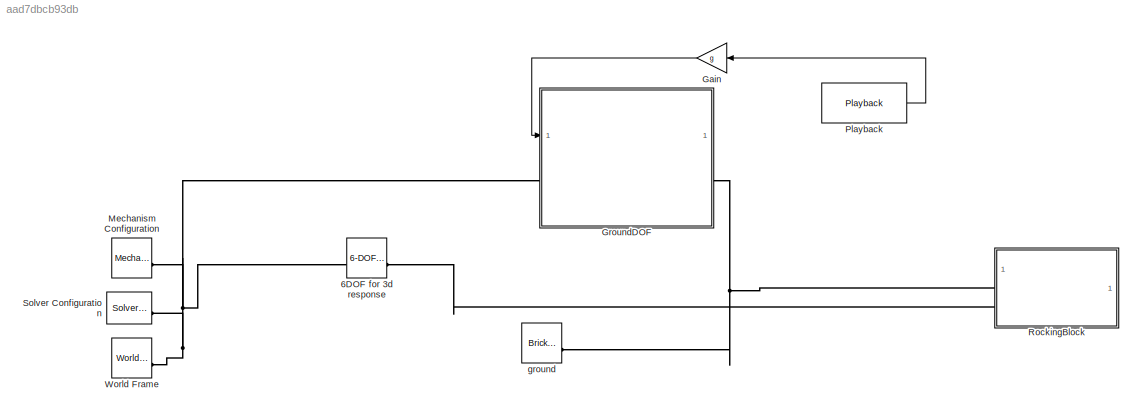
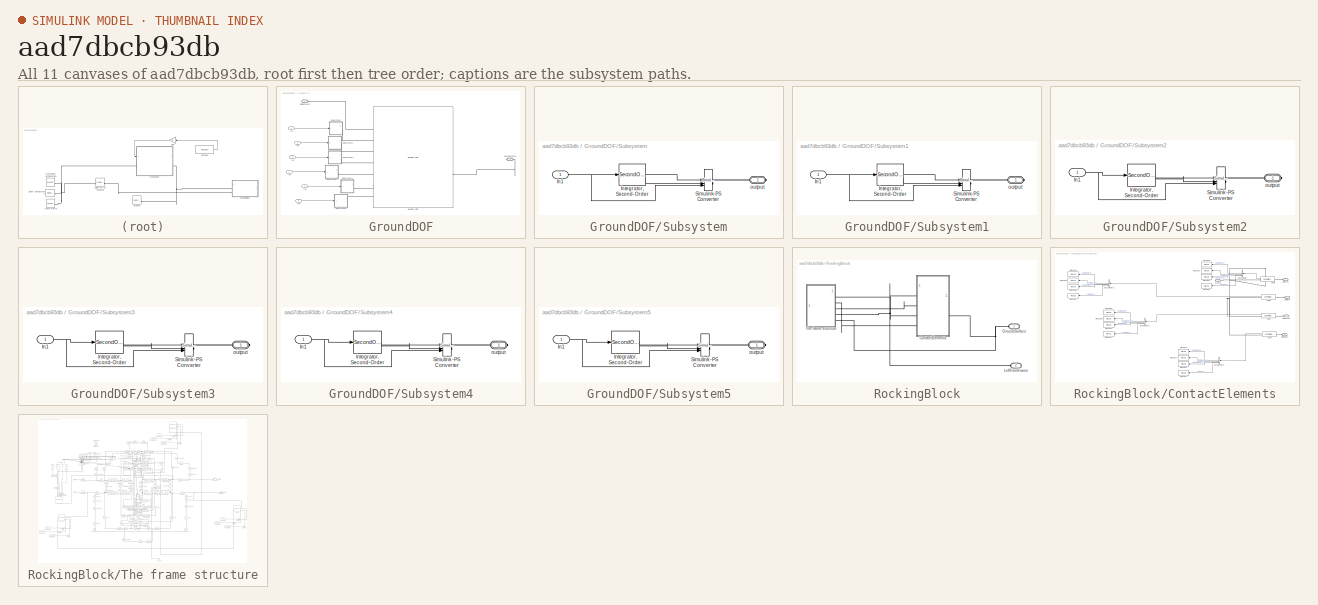
[diagram: thumbnail index - all 11 canvases of the model, root first then tree order]
MODEL slx_aad7dbcb93db
KIND model
CONFIG AbsTol = absTol
CONFIG EnableMultiTasking = off
CONFIG FixedStep = auto
CONFIG MaxStep = auto
CONFIG MinStep = auto
CONFIG RelTol = relTol
CONFIG SampleTimeConstraint = Unconstrained
CONFIG SolverName = ode45
CONFIG StartTime = 0.0
CONFIG StopTime = t_end
BLOCK [Reference] 6DOF for 3d response  REF=sm_lib/Joints/6-DOF Joint
  SourceBlock = sm_lib/Joints/6-DOF Joint
  SourceType = 6-DOF Joint
BLOCK [Gain] Gain
  Gain = g
  NameLocation = top
BLOCK [SubSystem] GroundDOF
BLOCK [Reference] GroundDOF/Bushing Joint  REF=sm_lib/Joints/Bushing Joint
  SourceBlock = sm_lib/Joints/Bushing Joint
  SourceType = Bushing Joint
BLOCK [PMIOPort] GroundDOF/GlobalFrame
  Side = Left
BLOCK [PMIOPort] GroundDOF/GroundFrame
  Port = 2
  Side = Right
BLOCK [Inport] GroundDOF/In1
BLOCK [Inport] GroundDOF/In2
  Port = 2
BLOCK [Inport] GroundDOF/In3
  Port = 3
BLOCK [Inport] GroundDOF/In4
  Port = 4
BLOCK [Inport] GroundDOF/In5
  Port = 5
BLOCK [Inport] GroundDOF/In6
  Port = 6
BLOCK [SubSystem] GroundDOF/Subsystem
BLOCK [Inport] GroundDOF/Subsystem/In1
BLOCK [SecondOrderIntegrator] GroundDOF/Subsystem/Integrator, Second-Order
BLOCK [Reference] GroundDOF/Subsystem/Simulink-PS Converter  REF=nesl_utility/Simulink-PS
Converter
  SourceBlock = nesl_utility/Simulink-PS\nConverter
  SourceType = Simulink-PS\nConverter
BLOCK [PMIOPort] GroundDOF/Subsystem/output
  Side = Right
BLOCK [SubSystem] GroundDOF/Subsystem1
BLOCK [Inport] GroundDOF/Subsystem1/In1
BLOCK [SecondOrderIntegrator] GroundDOF/Subsystem1/Integrator, Second-Order
BLOCK [Reference] GroundDOF/Subsystem1/Simulink-PS Converter  REF=nesl_utility/Simulink-PS
Converter
  SourceBlock = nesl_utility/Simulink-PS\nConverter
  SourceType = Simulink-PS\nConverter
BLOCK [PMIOPort] GroundDOF/Subsystem1/output
  Side = Right
BLOCK [SubSystem] GroundDOF/Subsystem2
BLOCK [Inport] GroundDOF/Subsystem2/In1
BLOCK [SecondOrderIntegrator] GroundDOF/Subsystem2/Integrator, Second-Order
BLOCK [Reference] GroundDOF/Subsystem2/Simulink-PS Converter  REF=nesl_utility/Simulink-PS
Converter
  SourceBlock = nesl_utility/Simulink-PS\nConverter
  SourceType = Simulink-PS\nConverter
BLOCK [PMIOPort] GroundDOF/Subsystem2/output
  Side = Right
BLOCK [SubSystem] GroundDOF/Subsystem3
BLOCK [Inport] GroundDOF/Subsystem3/In1
BLOCK [SecondOrderIntegrator] GroundDOF/Subsystem3/Integrator, Second-Order
BLOCK [Reference] GroundDOF/Subsystem3/Simulink-PS Converter  REF=nesl_utility/Simulink-PS
Converter
  SourceBlock = nesl_utility/Simulink-PS\nConverter
  SourceType = Simulink-PS\nConverter
BLOCK [PMIOPort] GroundDOF/Subsystem3/output
  Side = Right
BLOCK [SubSystem] GroundDOF/Subsystem4
BLOCK [Inport] GroundDOF/Subsystem4/In1
BLOCK [SecondOrderIntegrator] GroundDOF/Subsystem4/Integrator, Second-Order
BLOCK [Reference] GroundDOF/Subsystem4/Simulink-PS Converter  REF=nesl_utility/Simulink-PS
Converter
  SourceBlock = nesl_utility/Simulink-PS\nConverter
  SourceType = Simulink-PS\nConverter
BLOCK [PMIOPort] GroundDOF/Subsystem4/output
  Side = Right
BLOCK [SubSystem] GroundDOF/Subsystem5
BLOCK [Inport] GroundDOF/Subsystem5/In1
BLOCK [SecondOrderIntegrator] GroundDOF/Subsystem5/Integrator, Second-Order
BLOCK [Reference] GroundDOF/Subsystem5/Simulink-PS Converter  REF=nesl_utility/Simulink-PS
Converter
  SourceBlock = nesl_utility/Simulink-PS\nConverter
  SourceType = Simulink-PS\nConverter
BLOCK [PMIOPort] GroundDOF/Subsystem5/output
  Side = Right
BLOCK [Reference] Mechanism Configuration  REF=sm_lib/Utilities/Mechanism
Configuration
  SourceBlock = sm_lib/Utilities/Mechanism\nConfiguration
  SourceType = Mechanism\nConfiguration
BLOCK [Playback] Playback
  NumPorts = 1
  PartName = 2eaafee4-d5ee-4d8d-aa3a-0065ba24f6a1
BLOCK [SubSystem] RockingBlock
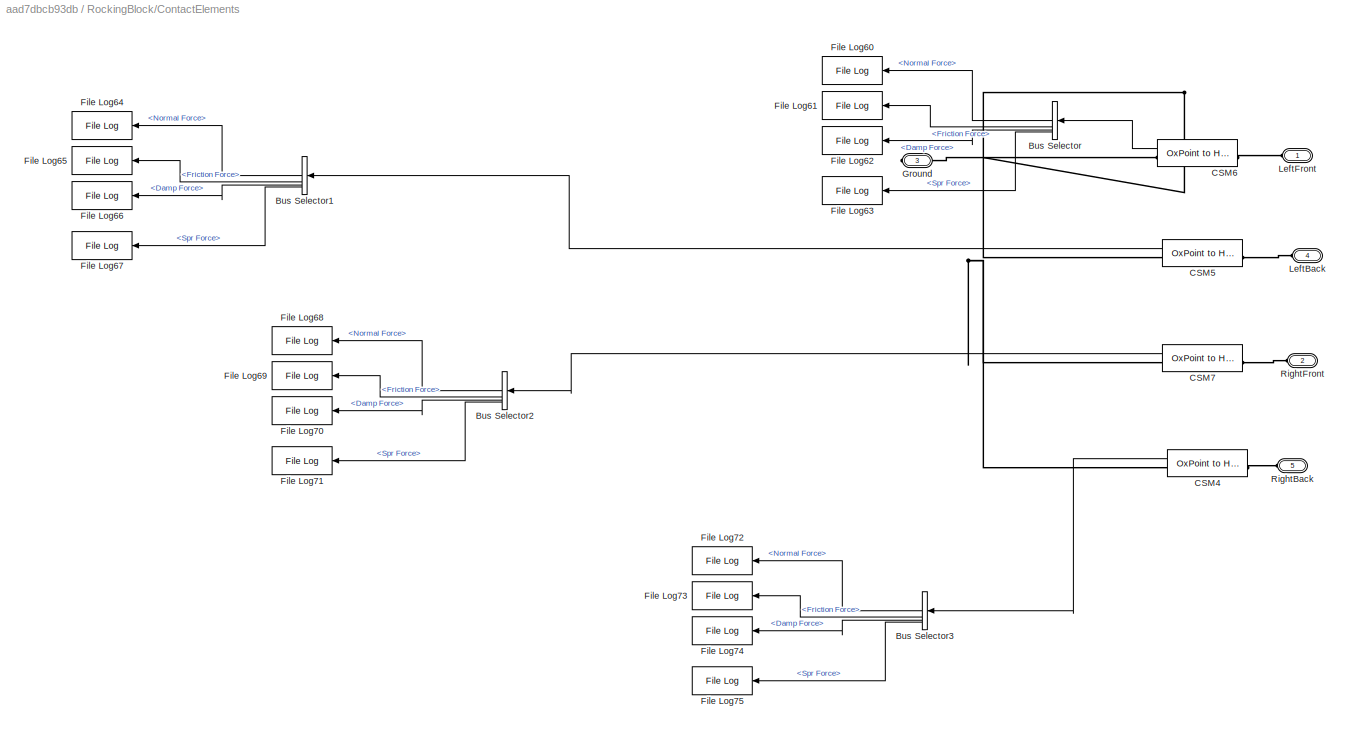
BLOCK [SubSystem] RockingBlock/ContactElements
BLOCK [BusSelector] RockingBlock/ContactElements/Bus Selector
  NameLocation = top
  OutputSignals = Normal Force,Friction Force,Damp Force,Spr Force
BLOCK [BusSelector] RockingBlock/ContactElements/Bus Selector1
  NameLocation = top
  OutputSignals = Normal Force,Friction Force,Damp Force,Spr Force
BLOCK [BusSelector] RockingBlock/ContactElements/Bus Selector2
  NameLocation = top
  OutputSignals = Normal Force,Friction Force,Damp Force,Spr Force
BLOCK [BusSelector] RockingBlock/ContactElements/Bus Selector3
  NameLocation = top
  OutputSignals = Normal Force,Friction Force,Damp Force,Spr Force
BLOCK [Reference] RockingBlock/ContactElements/CSM4  REF=OxDynamicsContact/OxPoint to Halfspace
  SourceBlock = OxDynamicsContact/OxPoint to Halfspace
  SourceType = Sphere to Plane Force
BLOCK [Reference] RockingBlock/ContactElements/CSM5  REF=OxDynamicsContact/OxPoint to Halfspace
  SourceBlock = OxDynamicsContact/OxPoint to Halfspace
  SourceType = Sphere to Plane Force
BLOCK [Reference] RockingBlock/ContactElements/CSM6  REF=OxDynamicsContact/OxPoint to Halfspace
  SourceBlock = OxDynamicsContact/OxPoint to Halfspace
  SourceType = Sphere to Plane Force
BLOCK [Reference] RockingBlock/ContactElements/CSM7  REF=OxDynamicsContact/OxPoint to Halfspace
  SourceBlock = OxDynamicsContact/OxPoint to Halfspace
  SourceType = Sphere to Plane Force
BLOCK [Reference] RockingBlock/ContactElements/File Log60  REF=slrealtimeloglib/File Log
  NameLocation = top
  SourceBlock = slrealtimeloglib/File Log
  SourceType = slrealtimeloggingblock
BLOCK [Reference] RockingBlock/ContactElements/File Log61  REF=slrealtimeloglib/File Log
  NameLocation = top
  SourceBlock = slrealtimeloglib/File Log
  SourceType = slrealtimeloggingblock
BLOCK [Reference] RockingBlock/ContactElements/File Log62  REF=slrealtimeloglib/File Log
  NameLocation = top
  SourceBlock = slrealtimeloglib/File Log
  SourceType = slrealtimeloggingblock
BLOCK [Reference] RockingBlock/ContactElements/File Log63  REF=slrealtimeloglib/File Log
  NameLocation = top
  SourceBlock = slrealtimeloglib/File Log
  SourceType = slrealtimeloggingblock
BLOCK [Reference] RockingBlock/ContactElements/File Log64  REF=slrealtimeloglib/File Log
  NameLocation = top
  SourceBlock = slrealtimeloglib/File Log
  SourceType = slrealtimeloggingblock
BLOCK [Reference] RockingBlock/ContactElements/File Log65  REF=slrealtimeloglib/File Log
  NameLocation = top
  SourceBlock = slrealtimeloglib/File Log
  SourceType = slrealtimeloggingblock
BLOCK [Reference] RockingBlock/ContactElements/File Log66  REF=slrealtimeloglib/File Log
  NameLocation = top
  SourceBlock = slrealtimeloglib/File Log
  SourceType = slrealtimeloggingblock
BLOCK [Reference] RockingBlock/ContactElements/File Log67  REF=slrealtimeloglib/File Log
  NameLocation = top
  SourceBlock = slrealtimeloglib/File Log
  SourceType = slrealtimeloggingblock
BLOCK [Reference] RockingBlock/ContactElements/File Log68  REF=slrealtimeloglib/File Log
  NameLocation = top
  SourceBlock = slrealtimeloglib/File Log
  SourceType = slrealtimeloggingblock
BLOCK [Reference] RockingBlock/ContactElements/File Log69  REF=slrealtimeloglib/File Log
  NameLocation = top
  SourceBlock = slrealtimeloglib/File Log
  SourceType = slrealtimeloggingblock
BLOCK [Reference] RockingBlock/ContactElements/File Log70  REF=slrealtimeloglib/File Log
  NameLocation = top
  SourceBlock = slrealtimeloglib/File Log
  SourceType = slrealtimeloggingblock
BLOCK [Reference] RockingBlock/ContactElements/File Log71  REF=slrealtimeloglib/File Log
  NameLocation = top
  SourceBlock = slrealtimeloglib/File Log
  SourceType = slrealtimeloggingblock
BLOCK [Reference] RockingBlock/ContactElements/File Log72  REF=slrealtimeloglib/File Log
  NameLocation = top
  SourceBlock = slrealtimeloglib/File Log
  SourceType = slrealtimeloggingblock
BLOCK [Reference] RockingBlock/ContactElements/File Log73  REF=slrealtimeloglib/File Log
  NameLocation = top
  SourceBlock = slrealtimeloglib/File Log
  SourceType = slrealtimeloggingblock
BLOCK [Reference] RockingBlock/ContactElements/File Log74  REF=slrealtimeloglib/File Log
  NameLocation = top
  SourceBlock = slrealtimeloglib/File Log
  SourceType = slrealtimeloggingblock
BLOCK [Reference] RockingBlock/ContactElements/File Log75  REF=slrealtimeloglib/File Log
  NameLocation = top
  SourceBlock = slrealtimeloglib/File Log
  SourceType = slrealtimeloggingblock
BLOCK [PMIOPort] RockingBlock/ContactElements/Ground
  Port = 3
  Side = Right
BLOCK [PMIOPort] RockingBlock/ContactElements/LeftBack
  Port = 4
  Side = Left
BLOCK [PMIOPort] RockingBlock/ContactElements/LeftFront
  Side = Left
BLOCK [PMIOPort] RockingBlock/ContactElements/RightBack
  Port = 5
  Side = Left
BLOCK [PMIOPort] RockingBlock/ContactElements/RightFront
  Port = 2
  Side = Left
BLOCK [PMIOPort] RockingBlock/GroundSurface
  NameLocation = top
  Side = Left
BLOCK [PMIOPort] RockingBlock/LeftFrontFrame
  NameLocation = top
  Port = 2
  Side = Left
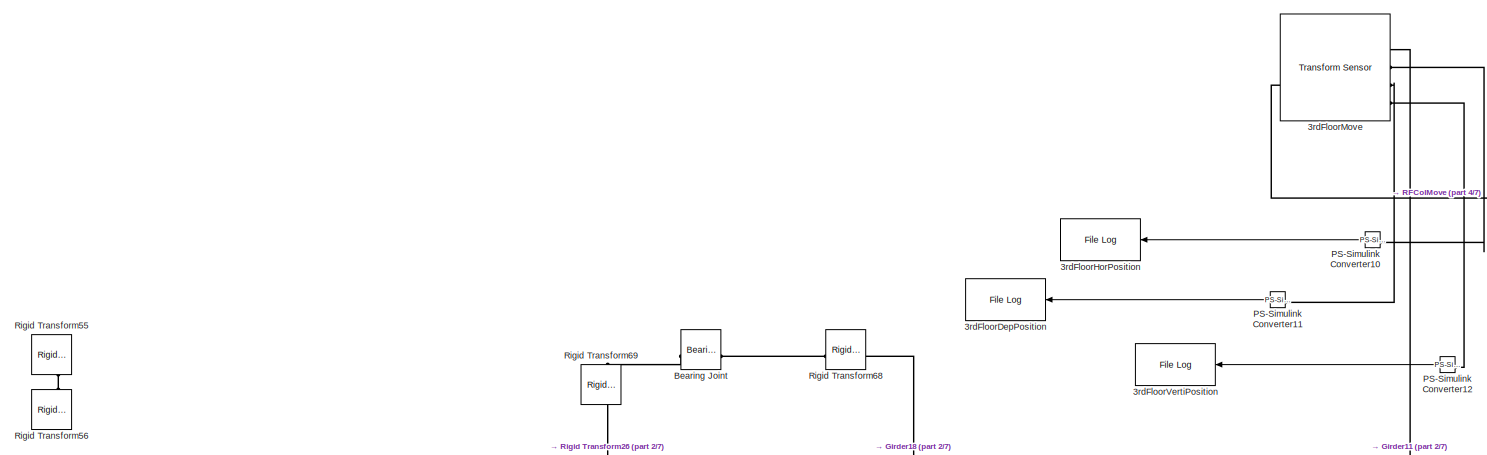
[diagram: RockingBlock/The frame structure - part 1/7, top center region]
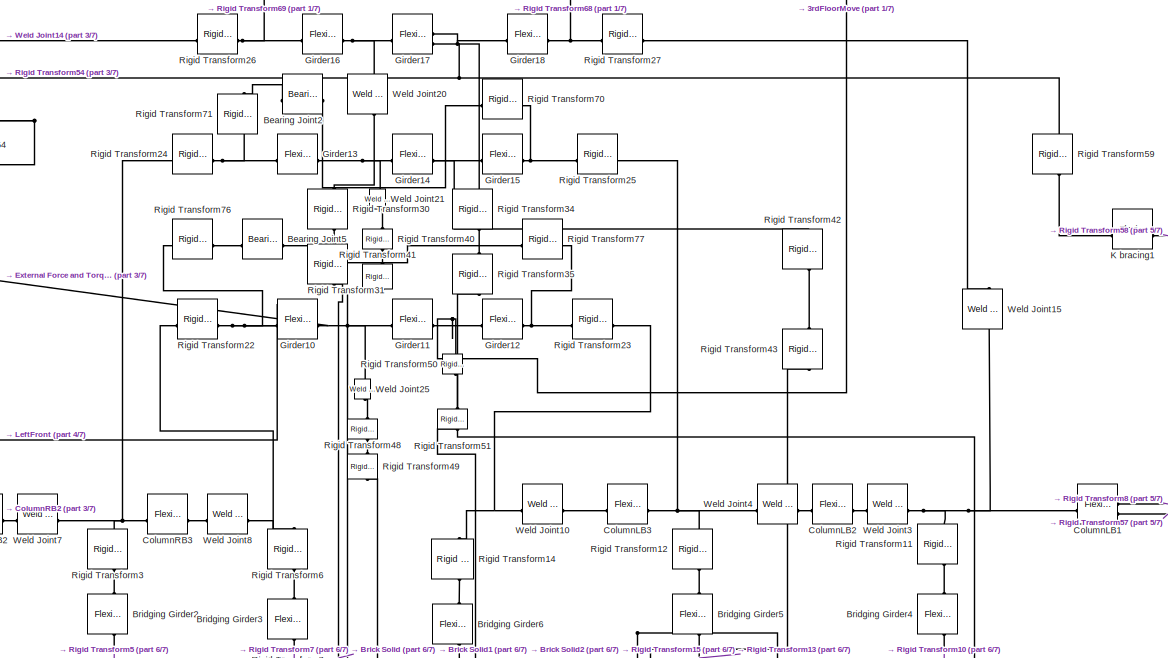
[diagram: RockingBlock/The frame structure - part 2/7, central region]
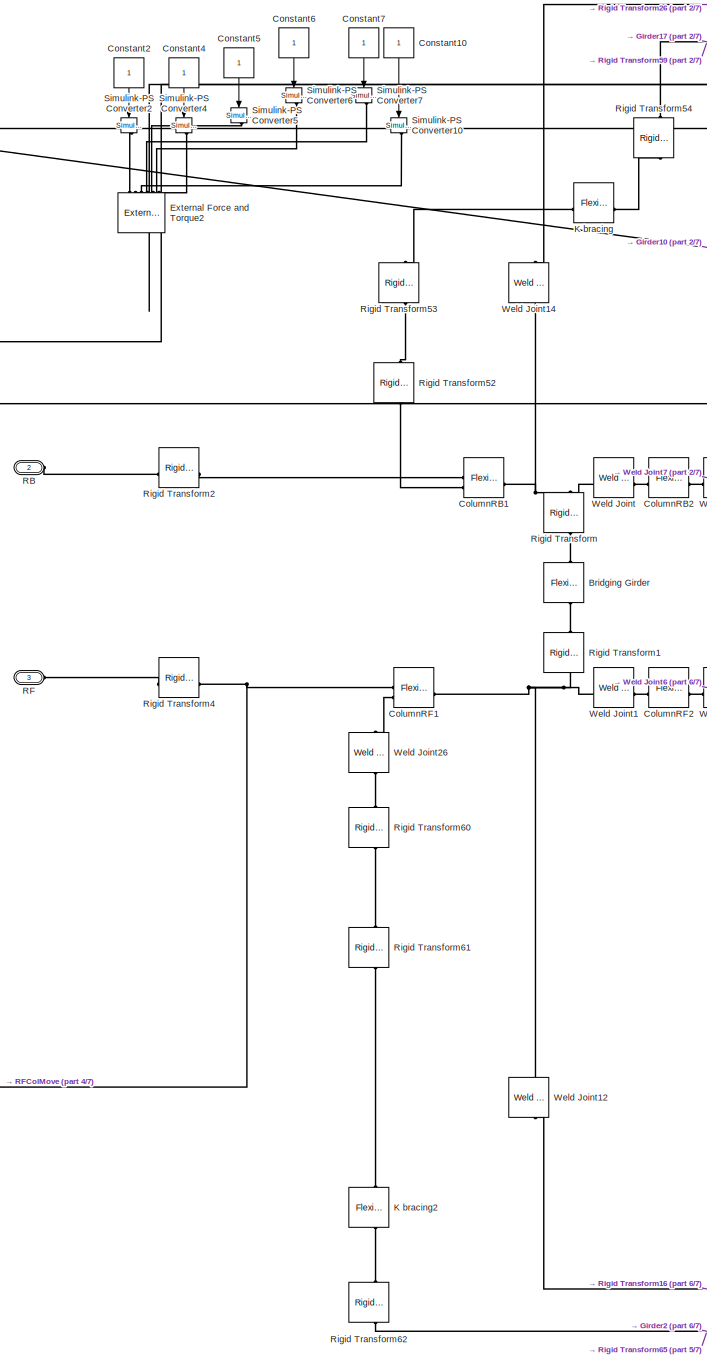
[diagram: RockingBlock/The frame structure - part 3/7, middle left region]
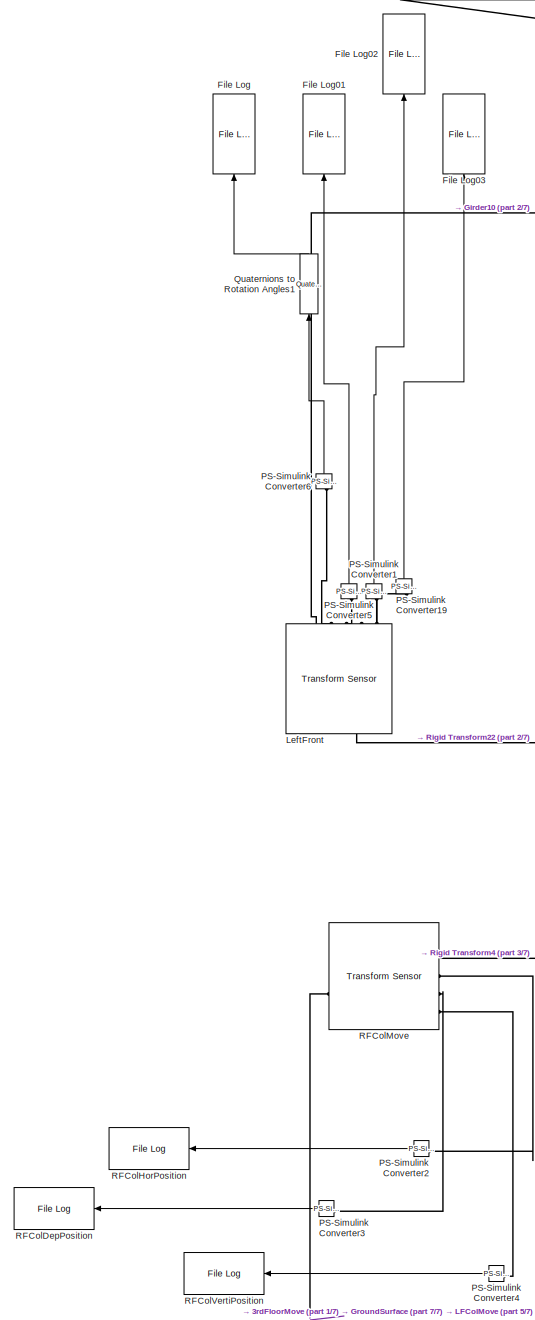
[diagram: RockingBlock/The frame structure - part 4/7, middle left region]
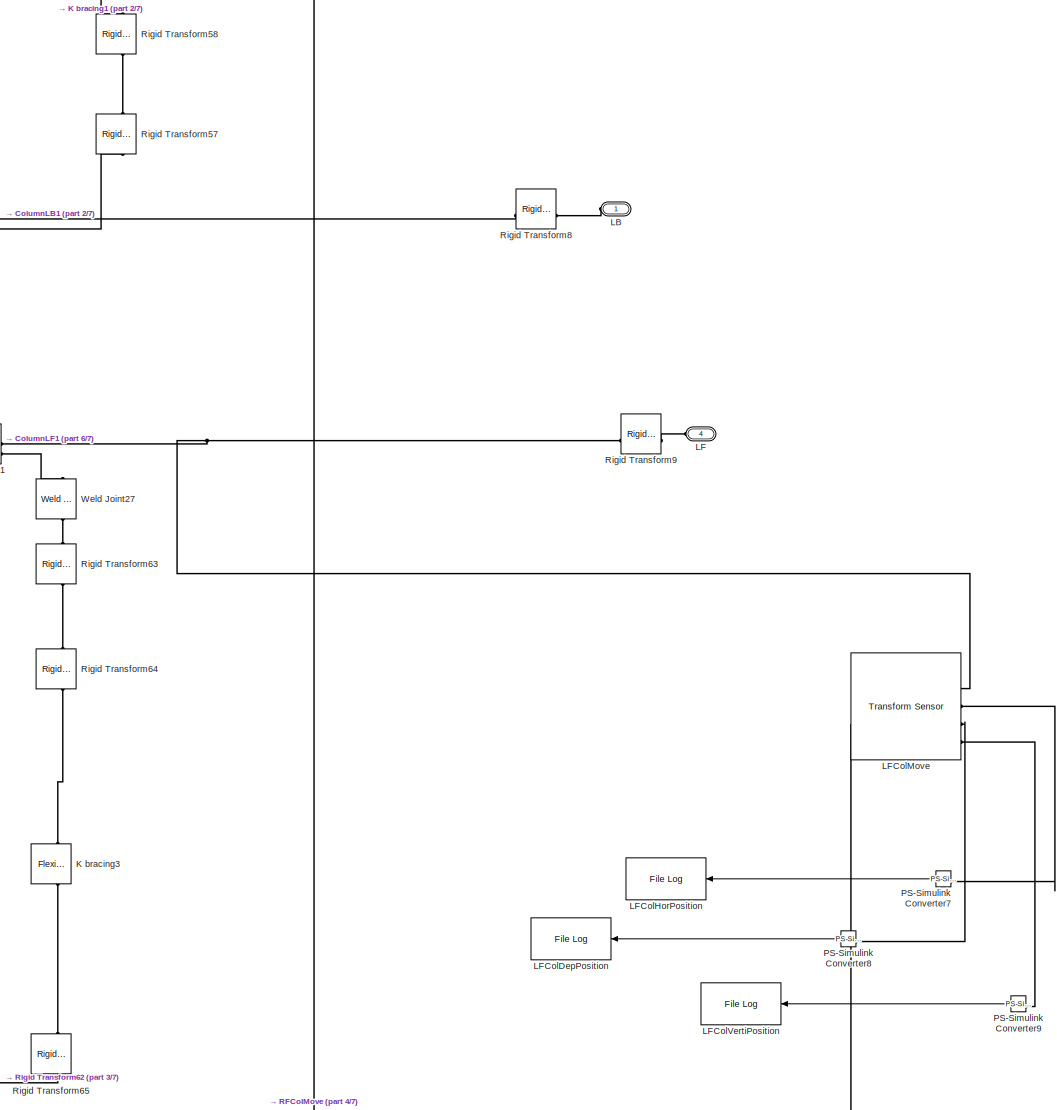
[diagram: RockingBlock/The frame structure - part 5/7, middle right region]
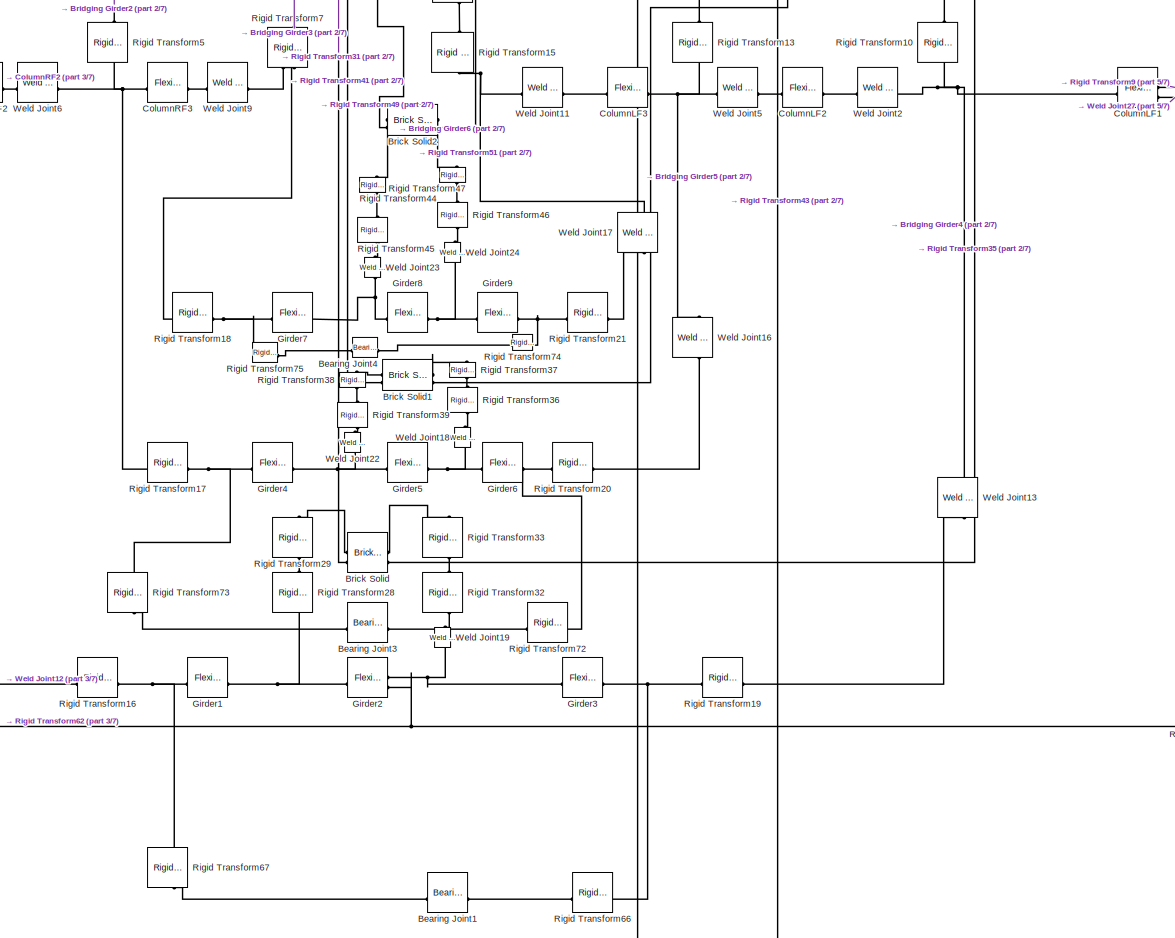
[diagram: RockingBlock/The frame structure - part 6/7, bottom center region]
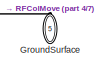
[diagram: RockingBlock/The frame structure - part 7/7, bottom center region]
BLOCK [SubSystem] RockingBlock/The frame structure
  NameLocation = top
BLOCK [Reference] RockingBlock/The frame structure/ LeftFront  REF=sm_lib/Frames and
Transforms/Transform
Sensor
  Commented = on
  NameLocation = right
  SourceBlock = sm_lib/Frames and\nTransforms/Transform\nSensor
  SourceType = Transform\nSensor
BLOCK [Reference] RockingBlock/The frame structure/3rdFloorDepPosition  REF=slrealtimeloglib/File Log
  NameLocation = top
  SourceBlock = slrealtimeloglib/File Log
  SourceType = slrealtimeloggingblock
BLOCK [Reference] RockingBlock/The frame structure/3rdFloorHorPosition  REF=slrealtimeloglib/File Log
  NameLocation = top
  SourceBlock = slrealtimeloglib/File Log
  SourceType = slrealtimeloggingblock
BLOCK [Reference] RockingBlock/The frame structure/3rdFloorMove  REF=sm_lib/Frames and
Transforms/Transform
Sensor
  SourceBlock = sm_lib/Frames and\nTransforms/Transform\nSensor
  SourceType = Transform\nSensor
BLOCK [Reference] RockingBlock/The frame structure/3rdFloorVertiPosition  REF=slrealtimeloglib/File Log
  NameLocation = top
  SourceBlock = slrealtimeloglib/File Log
  SourceType = slrealtimeloggingblock
BLOCK [Reference] RockingBlock/The frame structure/Bearing Joint  REF=sm_lib/Joints/Bearing Joint
  Commented = on
  NameLocation = top
  SourceBlock = sm_lib/Joints/Bearing Joint
  SourceType = Bearing Joint
BLOCK [Reference] RockingBlock/The frame structure/Bearing Joint1  REF=sm_lib/Joints/Bearing Joint
  Commented = on
  NameLocation = top
  SourceBlock = sm_lib/Joints/Bearing Joint
  SourceType = Bearing Joint
BLOCK [Reference] RockingBlock/The frame structure/Bearing Joint2  REF=sm_lib/Joints/Bearing Joint
  Commented = on
  NameLocation = top
  SourceBlock = sm_lib/Joints/Bearing Joint
  SourceType = Bearing Joint
BLOCK [Reference] RockingBlock/The frame structure/Bearing Joint3  REF=sm_lib/Joints/Bearing Joint
  Commented = on
  NameLocation = top
  SourceBlock = sm_lib/Joints/Bearing Joint
  SourceType = Bearing Joint
BLOCK [Reference] RockingBlock/The frame structure/Bearing Joint4  REF=sm_lib/Joints/Bearing Joint
  Commented = on
  NameLocation = top
  SourceBlock = sm_lib/Joints/Bearing Joint
  SourceType = Bearing Joint
BLOCK [Reference] RockingBlock/The frame structure/Bearing Joint5  REF=sm_lib/Joints/Bearing Joint
  Commented = on
  NameLocation = top
  SourceBlock = sm_lib/Joints/Bearing Joint
  SourceType = Bearing Joint
BLOCK [Reference] RockingBlock/The frame structure/Brick Solid  REF=sm_lib/Body Elements/Brick Solid
  SourceBlock = sm_lib/Body Elements/Brick Solid
  SourceType = Brick Solid
BLOCK [Reference] RockingBlock/The frame structure/Brick Solid1  REF=sm_lib/Body Elements/Brick Solid
  SourceBlock = sm_lib/Body Elements/Brick Solid
  SourceType = Brick Solid
BLOCK [Reference] RockingBlock/The frame structure/Brick Solid2  REF=sm_lib/Body Elements/Brick Solid
  SourceBlock = sm_lib/Body Elements/Brick Solid
  SourceType = Brick Solid
BLOCK [Reference] RockingBlock/The frame structure/Bridging Girder  REF=sm_lib/Body Elements/Flexible Bodies/Beams/Flexible I Beam
  NameLocation = left
  SourceBlock = sm_lib/Body Elements/Flexible Bodies/Beams/Flexible I Beam
  SourceType = Flexible I Beam
BLOCK [Reference] RockingBlock/The frame structure/Bridging Girder2  REF=sm_lib/Body Elements/Flexible Bodies/Beams/Flexible I Beam
  NameLocation = left
  SourceBlock = sm_lib/Body Elements/Flexible Bodies/Beams/Flexible I Beam
  SourceType = Flexible I Beam
BLOCK [Reference] RockingBlock/The frame structure/Bridging Girder3  REF=sm_lib/Body Elements/Flexible Bodies/Beams/Flexible I Beam
  NameLocation = left
  SourceBlock = sm_lib/Body Elements/Flexible Bodies/Beams/Flexible I Beam
  SourceType = Flexible I Beam
BLOCK [Reference] RockingBlock/The frame structure/Bridging Girder4  REF=sm_lib/Body Elements/Flexible Bodies/Beams/Flexible I Beam
  NameLocation = left
  SourceBlock = sm_lib/Body Elements/Flexible Bodies/Beams/Flexible I Beam
  SourceType = Flexible I Beam
BLOCK [Reference] RockingBlock/The frame structure/Bridging Girder5  REF=sm_lib/Body Elements/Flexible Bodies/Beams/Flexible I Beam
  NameLocation = left
  SourceBlock = sm_lib/Body Elements/Flexible Bodies/Beams/Flexible I Beam
  SourceType = Flexible I Beam
BLOCK [Reference] RockingBlock/The frame structure/Bridging Girder6  REF=sm_lib/Body Elements/Flexible Bodies/Beams/Flexible I Beam
  NameLocation = left
  SourceBlock = sm_lib/Body Elements/Flexible Bodies/Beams/Flexible I Beam
  SourceType = Flexible I Beam
BLOCK [Reference] RockingBlock/The frame structure/ColumnLB1  REF=sm_lib/Body Elements/Flexible Bodies/Beams/Flexible I Beam
  NameLocation = top
  SourceBlock = sm_lib/Body Elements/Flexible Bodies/Beams/Flexible I Beam
  SourceType = Flexible I Beam
BLOCK [Reference] RockingBlock/The frame structure/ColumnLB2  REF=sm_lib/Body Elements/Flexible Bodies/Beams/Flexible I Beam
  NameLocation = top
  SourceBlock = sm_lib/Body Elements/Flexible Bodies/Beams/Flexible I Beam
  SourceType = Flexible I Beam
BLOCK [Reference] RockingBlock/The frame structure/ColumnLB3  REF=sm_lib/Body Elements/Flexible Bodies/Beams/Flexible I Beam
  NameLocation = top
  SourceBlock = sm_lib/Body Elements/Flexible Bodies/Beams/Flexible I Beam
  SourceType = Flexible I Beam
BLOCK [Reference] RockingBlock/The frame structure/ColumnLF1  REF=sm_lib/Body Elements/Flexible Bodies/Beams/Flexible I Beam
  NameLocation = top
  SourceBlock = sm_lib/Body Elements/Flexible Bodies/Beams/Flexible I Beam
  SourceType = Flexible I Beam
BLOCK [Reference] RockingBlock/The frame structure/ColumnLF2  REF=sm_lib/Body Elements/Flexible Bodies/Beams/Flexible I Beam
  NameLocation = top
  SourceBlock = sm_lib/Body Elements/Flexible Bodies/Beams/Flexible I Beam
  SourceType = Flexible I Beam
BLOCK [Reference] RockingBlock/The frame structure/ColumnLF3  REF=sm_lib/Body Elements/Flexible Bodies/Beams/Flexible I Beam
  NameLocation = top
  SourceBlock = sm_lib/Body Elements/Flexible Bodies/Beams/Flexible I Beam
  SourceType = Flexible I Beam
BLOCK [Reference] RockingBlock/The frame structure/ColumnRB1  REF=sm_lib/Body Elements/Flexible Bodies/Beams/Flexible I Beam
  SourceBlock = sm_lib/Body Elements/Flexible Bodies/Beams/Flexible I Beam
  SourceType = Flexible I Beam
BLOCK [Reference] RockingBlock/The frame structure/ColumnRB2  REF=sm_lib/Body Elements/Flexible Bodies/Beams/Flexible I Beam
  SourceBlock = sm_lib/Body Elements/Flexible Bodies/Beams/Flexible I Beam
  SourceType = Flexible I Beam
BLOCK [Reference] RockingBlock/The frame structure/ColumnRB3  REF=sm_lib/Body Elements/Flexible Bodies/Beams/Flexible I Beam
  SourceBlock = sm_lib/Body Elements/Flexible Bodies/Beams/Flexible I Beam
  SourceType = Flexible I Beam
BLOCK [Reference] RockingBlock/The frame structure/ColumnRF1  REF=sm_lib/Body Elements/Flexible Bodies/Beams/Flexible I Beam
  SourceBlock = sm_lib/Body Elements/Flexible Bodies/Beams/Flexible I Beam
  SourceType = Flexible I Beam
BLOCK [Reference] RockingBlock/The frame structure/ColumnRF2  REF=sm_lib/Body Elements/Flexible Bodies/Beams/Flexible I Beam
  SourceBlock = sm_lib/Body Elements/Flexible Bodies/Beams/Flexible I Beam
  SourceType = Flexible I Beam
BLOCK [Reference] RockingBlock/The frame structure/ColumnRF3  REF=sm_lib/Body Elements/Flexible Bodies/Beams/Flexible I Beam
  SourceBlock = sm_lib/Body Elements/Flexible Bodies/Beams/Flexible I Beam
  SourceType = Flexible I Beam
BLOCK [Constant] RockingBlock/The frame structure/Constant10
  Commented = on
  NameLocation = left
BLOCK [Constant] RockingBlock/The frame structure/Constant2
  Commented = on
  NameLocation = left
BLOCK [Constant] RockingBlock/The frame structure/Constant4
  Commented = on
  NameLocation = left
BLOCK [Constant] RockingBlock/The frame structure/Constant5
  Commented = on
  NameLocation = left
BLOCK [Constant] RockingBlock/The frame structure/Constant6
  Commented = on
  NameLocation = left
BLOCK [Constant] RockingBlock/The frame structure/Constant7
  Commented = on
  NameLocation = left
BLOCK [Reference] RockingBlock/The frame structure/External Force and Torque2  REF=sm_lib/Forces and
Torques/External Force
and Torque
  Commented = on
  NameLocation = left
  SourceBlock = sm_lib/Forces and\nTorques/External Force\nand Torque
  SourceType = External Force\nand Torque
BLOCK [Reference] RockingBlock/The frame structure/File Log  REF=slrealtimeloglib/File Log
  Commented = on
  NameLocation = right
  SourceBlock = slrealtimeloglib/File Log
  SourceType = slrealtimeloggingblock
BLOCK [Reference] RockingBlock/The frame structure/File Log01  REF=slrealtimeloglib/File Log
  Commented = on
  NameLocation = right
  SourceBlock = slrealtimeloglib/File Log
  SourceType = slrealtimeloggingblock
BLOCK [Reference] RockingBlock/The frame structure/File Log02  REF=slrealtimeloglib/File Log
  Commented = on
  NameLocation = right
  SourceBlock = slrealtimeloglib/File Log
  SourceType = slrealtimeloggingblock
BLOCK [Reference] RockingBlock/The frame structure/File Log03  REF=slrealtimeloglib/File Log
  Commented = on
  NameLocation = right
  SourceBlock = slrealtimeloglib/File Log
  SourceType = slrealtimeloggingblock
BLOCK [Reference] RockingBlock/The frame structure/Girder1  REF=sm_lib/Body Elements/Flexible Bodies/Beams/Flexible I Beam
  NameLocation = top
  SourceBlock = sm_lib/Body Elements/Flexible Bodies/Beams/Flexible I Beam
  SourceType = Flexible I Beam
BLOCK [Reference] RockingBlock/The frame structure/Girder10  REF=sm_lib/Body Elements/Flexible Bodies/Beams/Flexible I Beam
  NameLocation = top
  SourceBlock = sm_lib/Body Elements/Flexible Bodies/Beams/Flexible I Beam
  SourceType = Flexible I Beam
BLOCK [Reference] RockingBlock/The frame structure/Girder11  REF=sm_lib/Body Elements/Flexible Bodies/Beams/Flexible I Beam
  NameLocation = top
  SourceBlock = sm_lib/Body Elements/Flexible Bodies/Beams/Flexible I Beam
  SourceType = Flexible I Beam
BLOCK [Reference] RockingBlock/The frame structure/Girder12  REF=sm_lib/Body Elements/Flexible Bodies/Beams/Flexible I Beam
  NameLocation = top
  SourceBlock = sm_lib/Body Elements/Flexible Bodies/Beams/Flexible I Beam
  SourceType = Flexible I Beam
BLOCK [Reference] RockingBlock/The frame structure/Girder13  REF=sm_lib/Body Elements/Flexible Bodies/Beams/Flexible I Beam
  NameLocation = top
  SourceBlock = sm_lib/Body Elements/Flexible Bodies/Beams/Flexible I Beam
  SourceType = Flexible I Beam
BLOCK [Reference] RockingBlock/The frame structure/Girder14  REF=sm_lib/Body Elements/Flexible Bodies/Beams/Flexible I Beam
  NameLocation = top
  SourceBlock = sm_lib/Body Elements/Flexible Bodies/Beams/Flexible I Beam
  SourceType = Flexible I Beam
BLOCK [Reference] RockingBlock/The frame structure/Girder15  REF=sm_lib/Body Elements/Flexible Bodies/Beams/Flexible I Beam
  NameLocation = top
  SourceBlock = sm_lib/Body Elements/Flexible Bodies/Beams/Flexible I Beam
  SourceType = Flexible I Beam
BLOCK [Reference] RockingBlock/The frame structure/Girder16  REF=sm_lib/Body Elements/Flexible Bodies/Beams/Flexible I Beam
  NameLocation = top
  SourceBlock = sm_lib/Body Elements/Flexible Bodies/Beams/Flexible I Beam
  SourceType = Flexible I Beam
BLOCK [Reference] RockingBlock/The frame structure/Girder17  REF=sm_lib/Body Elements/Flexible Bodies/Beams/Flexible I Beam
  NameLocation = top
  SourceBlock = sm_lib/Body Elements/Flexible Bodies/Beams/Flexible I Beam
  SourceType = Flexible I Beam
BLOCK [Reference] RockingBlock/The frame structure/Girder18  REF=sm_lib/Body Elements/Flexible Bodies/Beams/Flexible I Beam
  NameLocation = top
  SourceBlock = sm_lib/Body Elements/Flexible Bodies/Beams/Flexible I Beam
  SourceType = Flexible I Beam
BLOCK [Reference] RockingBlock/The frame structure/Girder2  REF=sm_lib/Body Elements/Flexible Bodies/Beams/Flexible I Beam
  NameLocation = top
  SourceBlock = sm_lib/Body Elements/Flexible Bodies/Beams/Flexible I Beam
  SourceType = Flexible I Beam
BLOCK [Reference] RockingBlock/The frame structure/Girder3  REF=sm_lib/Body Elements/Flexible Bodies/Beams/Flexible I Beam
  NameLocation = top
  SourceBlock = sm_lib/Body Elements/Flexible Bodies/Beams/Flexible I Beam
  SourceType = Flexible I Beam
BLOCK [Reference] RockingBlock/The frame structure/Girder4  REF=sm_lib/Body Elements/Flexible Bodies/Beams/Flexible I Beam
  NameLocation = top
  SourceBlock = sm_lib/Body Elements/Flexible Bodies/Beams/Flexible I Beam
  SourceType = Flexible I Beam
BLOCK [Reference] RockingBlock/The frame structure/Girder5  REF=sm_lib/Body Elements/Flexible Bodies/Beams/Flexible I Beam
  NameLocation = top
  SourceBlock = sm_lib/Body Elements/Flexible Bodies/Beams/Flexible I Beam
  SourceType = Flexible I Beam
BLOCK [Reference] RockingBlock/The frame structure/Girder6  REF=sm_lib/Body Elements/Flexible Bodies/Beams/Flexible I Beam
  NameLocation = top
  SourceBlock = sm_lib/Body Elements/Flexible Bodies/Beams/Flexible I Beam
  SourceType = Flexible I Beam
BLOCK [Reference] RockingBlock/The frame structure/Girder7  REF=sm_lib/Body Elements/Flexible Bodies/Beams/Flexible I Beam
  NameLocation = top
  SourceBlock = sm_lib/Body Elements/Flexible Bodies/Beams/Flexible I Beam
  SourceType = Flexible I Beam
BLOCK [Reference] RockingBlock/The frame structure/Girder8  REF=sm_lib/Body Elements/Flexible Bodies/Beams/Flexible I Beam
  NameLocation = top
  SourceBlock = sm_lib/Body Elements/Flexible Bodies/Beams/Flexible I Beam
  SourceType = Flexible I Beam
BLOCK [Reference] RockingBlock/The frame structure/Girder9  REF=sm_lib/Body Elements/Flexible Bodies/Beams/Flexible I Beam
  NameLocation = top
  SourceBlock = sm_lib/Body Elements/Flexible Bodies/Beams/Flexible I Beam
  SourceType = Flexible I Beam
BLOCK [PMIOPort] RockingBlock/The frame structure/GroundSurface
  NameLocation = left
  Port = 5
  Side = Left
BLOCK [Reference] RockingBlock/The frame structure/K bracing  REF=sm_lib/Body Elements/Flexible Bodies/Beams/Flexible I Beam
  NameLocation = top
  SourceBlock = sm_lib/Body Elements/Flexible Bodies/Beams/Flexible I Beam
  SourceType = Flexible I Beam
BLOCK [Reference] RockingBlock/The frame structure/K bracing1  REF=sm_lib/Body Elements/Flexible Bodies/Beams/Flexible I Beam
  NameLocation = top
  SourceBlock = sm_lib/Body Elements/Flexible Bodies/Beams/Flexible I Beam
  SourceType = Flexible I Beam
BLOCK [Reference] RockingBlock/The frame structure/K bracing2  REF=sm_lib/Body Elements/Flexible Bodies/Beams/Flexible I Beam
  NameLocation = right
  SourceBlock = sm_lib/Body Elements/Flexible Bodies/Beams/Flexible I Beam
  SourceType = Flexible I Beam
BLOCK [Reference] RockingBlock/The frame structure/K bracing3  REF=sm_lib/Body Elements/Flexible Bodies/Beams/Flexible I Beam
  NameLocation = left
  SourceBlock = sm_lib/Body Elements/Flexible Bodies/Beams/Flexible I Beam
  SourceType = Flexible I Beam
BLOCK [PMIOPort] RockingBlock/The frame structure/LB
  Side = Left
BLOCK [PMIOPort] RockingBlock/The frame structure/LF
  Port = 4
  Side = Left
BLOCK [Reference] RockingBlock/The frame structure/LFColDepPosition  REF=slrealtimeloglib/File Log
  NameLocation = top
  SourceBlock = slrealtimeloglib/File Log
  SourceType = slrealtimeloggingblock
BLOCK [Reference] RockingBlock/The frame structure/LFColHorPosition  REF=slrealtimeloglib/File Log
  NameLocation = top
  SourceBlock = slrealtimeloglib/File Log
  SourceType = slrealtimeloggingblock
BLOCK [Reference] RockingBlock/The frame structure/LFColMove  REF=sm_lib/Frames and
Transforms/Transform
Sensor
  SourceBlock = sm_lib/Frames and\nTransforms/Transform\nSensor
  SourceType = Transform\nSensor
BLOCK [Reference] RockingBlock/The frame structure/LFColVertiPosition  REF=slrealtimeloglib/File Log
  NameLocation = top
  SourceBlock = slrealtimeloglib/File Log
  SourceType = slrealtimeloggingblock
BLOCK [Reference] RockingBlock/The frame structure/PS-Simulink Converter1  REF=nesl_utility/PS-Simulink
Converter
  Commented = on
  NameLocation = right
  SourceBlock = nesl_utility/PS-Simulink\nConverter
  SourceType = PS-Simulink\nConverter
BLOCK [Reference] RockingBlock/The frame structure/PS-Simulink Converter10  REF=nesl_utility/PS-Simulink
Converter
  NameLocation = top
  SourceBlock = nesl_utility/PS-Simulink\nConverter
  SourceType = PS-Simulink\nConverter
BLOCK [Reference] RockingBlock/The frame structure/PS-Simulink Converter11  REF=nesl_utility/PS-Simulink
Converter
  NameLocation = top
  SourceBlock = nesl_utility/PS-Simulink\nConverter
  SourceType = PS-Simulink\nConverter
BLOCK [Reference] RockingBlock/The frame structure/PS-Simulink Converter12  REF=nesl_utility/PS-Simulink
Converter
  NameLocation = top
  SourceBlock = nesl_utility/PS-Simulink\nConverter
  SourceType = PS-Simulink\nConverter
BLOCK [Reference] RockingBlock/The frame structure/PS-Simulink Converter19  REF=nesl_utility/PS-Simulink
Converter
  Commented = on
  NameLocation = right
  SourceBlock = nesl_utility/PS-Simulink\nConverter
  SourceType = PS-Simulink\nConverter
BLOCK [Reference] RockingBlock/The frame structure/PS-Simulink Converter2  REF=nesl_utility/PS-Simulink
Converter
  NameLocation = top
  SourceBlock = nesl_utility/PS-Simulink\nConverter
  SourceType = PS-Simulink\nConverter
BLOCK [Reference] RockingBlock/The frame structure/PS-Simulink Converter3  REF=nesl_utility/PS-Simulink
Converter
  NameLocation = top
  SourceBlock = nesl_utility/PS-Simulink\nConverter
  SourceType = PS-Simulink\nConverter
BLOCK [Reference] RockingBlock/The frame structure/PS-Simulink Converter4  REF=nesl_utility/PS-Simulink
Converter
  NameLocation = top
  SourceBlock = nesl_utility/PS-Simulink\nConverter
  SourceType = PS-Simulink\nConverter
BLOCK [Reference] RockingBlock/The frame structure/PS-Simulink Converter5  REF=nesl_utility/PS-Simulink
Converter
  Commented = on
  NameLocation = right
  SourceBlock = nesl_utility/PS-Simulink\nConverter
  SourceType = PS-Simulink\nConverter
BLOCK [Reference] RockingBlock/The frame structure/PS-Simulink Converter6  REF=nesl_utility/PS-Simulink
Converter
  Commented = on
  NameLocation = right
  SourceBlock = nesl_utility/PS-Simulink\nConverter
  SourceType = PS-Simulink\nConverter
BLOCK [Reference] RockingBlock/The frame structure/PS-Simulink Converter7  REF=nesl_utility/PS-Simulink
Converter
  NameLocation = top
  SourceBlock = nesl_utility/PS-Simulink\nConverter
  SourceType = PS-Simulink\nConverter
BLOCK [Reference] RockingBlock/The frame structure/PS-Simulink Converter8  REF=nesl_utility/PS-Simulink
Converter
  NameLocation = top
  SourceBlock = nesl_utility/PS-Simulink\nConverter
  SourceType = PS-Simulink\nConverter
BLOCK [Reference] RockingBlock/The frame structure/PS-Simulink Converter9  REF=nesl_utility/PS-Simulink
Converter
  NameLocation = top
  SourceBlock = nesl_utility/PS-Simulink\nConverter
  SourceType = PS-Simulink\nConverter
BLOCK [Reference] RockingBlock/The frame structure/Quaternions to Rotation Angles1  REF=sharedtransform/Quaternions to Rotation Angles
  AttributesFormatString = Rotation Order: %<rotationOrder>
  Commented = on
  NameLocation = right
  SourceBlock = sharedtransform/Quaternions to Rotation Angles
  SourceType = Quat2Ang
BLOCK [PMIOPort] RockingBlock/The frame structure/RB
  NameLocation = top
  Port = 2
  Side = Left
BLOCK [PMIOPort] RockingBlock/The frame structure/RF
  NameLocation = top
  Port = 3
  Side = Left
BLOCK [Reference] RockingBlock/The frame structure/RFColDepPosition  REF=slrealtimeloglib/File Log
  NameLocation = top
  SourceBlock = slrealtimeloglib/File Log
  SourceType = slrealtimeloggingblock
BLOCK [Reference] RockingBlock/The frame structure/RFColHorPosition  REF=slrealtimeloglib/File Log
  NameLocation = top
  SourceBlock = slrealtimeloglib/File Log
  SourceType = slrealtimeloggingblock
BLOCK [Reference] RockingBlock/The frame structure/RFColMove  REF=sm_lib/Frames and
Transforms/Transform
Sensor
  SourceBlock = sm_lib/Frames and\nTransforms/Transform\nSensor
  SourceType = Transform\nSensor
BLOCK [Reference] RockingBlock/The frame structure/RFColVertiPosition  REF=slrealtimeloglib/File Log
  NameLocation = top
  SourceBlock = slrealtimeloglib/File Log
  SourceType = slrealtimeloggingblock
BLOCK [Reference] RockingBlock/The frame structure/Rigid Transform  REF=sm_lib/Frames and
Transforms/Rigid
Transform
  NameLocation = left
  SourceBlock = sm_lib/Frames and\nTransforms/Rigid\nTransform
  SourceType = Rigid\nTransform
BLOCK [Reference] RockingBlock/The frame structure/Rigid Transform1  REF=sm_lib/Frames and
Transforms/Rigid
Transform
  NameLocation = right
  SourceBlock = sm_lib/Frames and\nTransforms/Rigid\nTransform
  SourceType = Rigid\nTransform
BLOCK [Reference] RockingBlock/The frame structure/Rigid Transform10  REF=sm_lib/Frames and
Transforms/Rigid
Transform
  NameLocation = right
  SourceBlock = sm_lib/Frames and\nTransforms/Rigid\nTransform
  SourceType = Rigid\nTransform
BLOCK [Reference] RockingBlock/The frame structure/Rigid Transform11  REF=sm_lib/Frames and
Transforms/Rigid
Transform
  NameLocation = left
  SourceBlock = sm_lib/Frames and\nTransforms/Rigid\nTransform
  SourceType = Rigid\nTransform
BLOCK [Reference] RockingBlock/The frame structure/Rigid Transform12  REF=sm_lib/Frames and
Transforms/Rigid
Transform
  NameLocation = left
  SourceBlock = sm_lib/Frames and\nTransforms/Rigid\nTransform
  SourceType = Rigid\nTransform
BLOCK [Reference] RockingBlock/The frame structure/Rigid Transform13  REF=sm_lib/Frames and
Transforms/Rigid
Transform
  NameLocation = right
  SourceBlock = sm_lib/Frames and\nTransforms/Rigid\nTransform
  SourceType = Rigid\nTransform
BLOCK [Reference] RockingBlock/The frame structure/Rigid Transform14  REF=sm_lib/Frames and
Transforms/Rigid
Transform
  NameLocation = left
  SourceBlock = sm_lib/Frames and\nTransforms/Rigid\nTransform
  SourceType = Rigid\nTransform
BLOCK [Reference] RockingBlock/The frame structure/Rigid Transform15  REF=sm_lib/Frames and
Transforms/Rigid
Transform
  NameLocation = right
  SourceBlock = sm_lib/Frames and\nTransforms/Rigid\nTransform
  SourceType = Rigid\nTransform
BLOCK [Reference] RockingBlock/The frame structure/Rigid Transform16  REF=sm_lib/Frames and
Transforms/Rigid
Transform
  SourceBlock = sm_lib/Frames and\nTransforms/Rigid\nTransform
  SourceType = Rigid\nTransform
BLOCK [Reference] RockingBlock/The frame structure/Rigid Transform17  REF=sm_lib/Frames and
Transforms/Rigid
Transform
  SourceBlock = sm_lib/Frames and\nTransforms/Rigid\nTransform
  SourceType = Rigid\nTransform
BLOCK [Reference] RockingBlock/The frame structure/Rigid Transform18  REF=sm_lib/Frames and
Transforms/Rigid
Transform
  SourceBlock = sm_lib/Frames and\nTransforms/Rigid\nTransform
  SourceType = Rigid\nTransform
BLOCK [Reference] RockingBlock/The frame structure/Rigid Transform19  REF=sm_lib/Frames and
Transforms/Rigid
Transform
  NameLocation = top
  SourceBlock = sm_lib/Frames and\nTransforms/Rigid\nTransform
  SourceType = Rigid\nTransform
BLOCK [Reference] RockingBlock/The frame structure/Rigid Transform2  REF=sm_lib/Frames and
Transforms/Rigid
Transform
  SourceBlock = sm_lib/Frames and\nTransforms/Rigid\nTransform
  SourceType = Rigid\nTransform
BLOCK [Reference] RockingBlock/The frame structure/Rigid Transform20  REF=sm_lib/Frames and
Transforms/Rigid
Transform
  NameLocation = top
  SourceBlock = sm_lib/Frames and\nTransforms/Rigid\nTransform
  SourceType = Rigid\nTransform
BLOCK [Reference] RockingBlock/The frame structure/Rigid Transform21  REF=sm_lib/Frames and
Transforms/Rigid
Transform
  NameLocation = top
  SourceBlock = sm_lib/Frames and\nTransforms/Rigid\nTransform
  SourceType = Rigid\nTransform
BLOCK [Reference] RockingBlock/The frame structure/Rigid Transform22  REF=sm_lib/Frames and
Transforms/Rigid
Transform
  SourceBlock = sm_lib/Frames and\nTransforms/Rigid\nTransform
  SourceType = Rigid\nTransform
BLOCK [Reference] RockingBlock/The frame structure/Rigid Transform23  REF=sm_lib/Frames and
Transforms/Rigid
Transform
  NameLocation = top
  SourceBlock = sm_lib/Frames and\nTransforms/Rigid\nTransform
  SourceType = Rigid\nTransform
BLOCK [Reference] RockingBlock/The frame structure/Rigid Transform24  REF=sm_lib/Frames and
Transforms/Rigid
Transform
  SourceBlock = sm_lib/Frames and\nTransforms/Rigid\nTransform
  SourceType = Rigid\nTransform
BLOCK [Reference] RockingBlock/The frame structure/Rigid Transform25  REF=sm_lib/Frames and
Transforms/Rigid
Transform
  NameLocation = top
  SourceBlock = sm_lib/Frames and\nTransforms/Rigid\nTransform
  SourceType = Rigid\nTransform
BLOCK [Reference] RockingBlock/The frame structure/Rigid Transform26  REF=sm_lib/Frames and
Transforms/Rigid
Transform
  SourceBlock = sm_lib/Frames and\nTransforms/Rigid\nTransform
  SourceType = Rigid\nTransform
BLOCK [Reference] RockingBlock/The frame structure/Rigid Transform27  REF=sm_lib/Frames and
Transforms/Rigid
Transform
  NameLocation = top
  SourceBlock = sm_lib/Frames and\nTransforms/Rigid\nTransform
  SourceType = Rigid\nTransform
BLOCK [Reference] RockingBlock/The frame structure/Rigid Transform28  REF=sm_lib/Frames and
Transforms/Rigid
Transform
  NameLocation = right
  SourceBlock = sm_lib/Frames and\nTransforms/Rigid\nTransform
  SourceType = Rigid\nTransform
BLOCK [Reference] RockingBlock/The frame structure/Rigid Transform29  REF=sm_lib/Frames and
Transforms/Rigid
Transform
  NameLocation = right
  SourceBlock = sm_lib/Frames and\nTransforms/Rigid\nTransform
  SourceType = Rigid\nTransform
BLOCK [Reference] RockingBlock/The frame structure/Rigid Transform3  REF=sm_lib/Frames and
Transforms/Rigid
Transform
  NameLocation = left
  SourceBlock = sm_lib/Frames and\nTransforms/Rigid\nTransform
  SourceType = Rigid\nTransform
BLOCK [Reference] RockingBlock/The frame structure/Rigid Transform30  REF=sm_lib/Frames and
Transforms/Rigid
Transform
  NameLocation = left
  SourceBlock = sm_lib/Frames and\nTransforms/Rigid\nTransform
  SourceType = Rigid\nTransform
BLOCK [Reference] RockingBlock/The frame structure/Rigid Transform31  REF=sm_lib/Frames and
Transforms/Rigid
Transform
  NameLocation = left
  SourceBlock = sm_lib/Frames and\nTransforms/Rigid\nTransform
  SourceType = Rigid\nTransform
BLOCK [Reference] RockingBlock/The frame structure/Rigid Transform32  REF=sm_lib/Frames and
Transforms/Rigid
Transform
  NameLocation = right
  SourceBlock = sm_lib/Frames and\nTransforms/Rigid\nTransform
  SourceType = Rigid\nTransform
BLOCK [Reference] RockingBlock/The frame structure/Rigid Transform33  REF=sm_lib/Frames and
Transforms/Rigid
Transform
  NameLocation = right
  SourceBlock = sm_lib/Frames and\nTransforms/Rigid\nTransform
  SourceType = Rigid\nTransform
BLOCK [Reference] RockingBlock/The frame structure/Rigid Transform34  REF=sm_lib/Frames and
Transforms/Rigid
Transform
  NameLocation = left
  SourceBlock = sm_lib/Frames and\nTransforms/Rigid\nTransform
  SourceType = Rigid\nTransform
BLOCK [Reference] RockingBlock/The frame structure/Rigid Transform35  REF=sm_lib/Frames and
Transforms/Rigid
Transform
  NameLocation = left
  SourceBlock = sm_lib/Frames and\nTransforms/Rigid\nTransform
  SourceType = Rigid\nTransform
BLOCK [Reference] RockingBlock/The frame structure/Rigid Transform36  REF=sm_lib/Frames and
Transforms/Rigid
Transform
  NameLocation = right
  SourceBlock = sm_lib/Frames and\nTransforms/Rigid\nTransform
  SourceType = Rigid\nTransform
BLOCK [Reference] RockingBlock/The frame structure/Rigid Transform37  REF=sm_lib/Frames and
Transforms/Rigid
Transform
  NameLocation = right
  SourceBlock = sm_lib/Frames and\nTransforms/Rigid\nTransform
  SourceType = Rigid\nTransform
BLOCK [Reference] RockingBlock/The frame structure/Rigid Transform38  REF=sm_lib/Frames and
Transforms/Rigid
Transform
  NameLocation = right
  SourceBlock = sm_lib/Frames and\nTransforms/Rigid\nTransform
  SourceType = Rigid\nTransform
BLOCK [Reference] RockingBlock/The frame structure/Rigid Transform39  REF=sm_lib/Frames and
Transforms/Rigid
Transform
  NameLocation = right
  SourceBlock = sm_lib/Frames and\nTransforms/Rigid\nTransform
  SourceType = Rigid\nTransform
BLOCK [Reference] RockingBlock/The frame structure/Rigid Transform4  REF=sm_lib/Frames and
Transforms/Rigid
Transform
  SourceBlock = sm_lib/Frames and\nTransforms/Rigid\nTransform
  SourceType = Rigid\nTransform
BLOCK [Reference] RockingBlock/The frame structure/Rigid Transform40  REF=sm_lib/Frames and
Transforms/Rigid
Transform
  NameLocation = left
  SourceBlock = sm_lib/Frames and\nTransforms/Rigid\nTransform
  SourceType = Rigid\nTransform
BLOCK [Reference] RockingBlock/The frame structure/Rigid Transform41  REF=sm_lib/Frames and
Transforms/Rigid
Transform
  NameLocation = left
  SourceBlock = sm_lib/Frames and\nTransforms/Rigid\nTransform
  SourceType = Rigid\nTransform
BLOCK [Reference] RockingBlock/The frame structure/Rigid Transform42  REF=sm_lib/Frames and
Transforms/Rigid
Transform
  NameLocation = left
  SourceBlock = sm_lib/Frames and\nTransforms/Rigid\nTransform
  SourceType = Rigid\nTransform
BLOCK [Reference] RockingBlock/The frame structure/Rigid Transform43  REF=sm_lib/Frames and
Transforms/Rigid
Transform
  NameLocation = left
  SourceBlock = sm_lib/Frames and\nTransforms/Rigid\nTransform
  SourceType = Rigid\nTransform
BLOCK [Reference] RockingBlock/The frame structure/Rigid Transform44  REF=sm_lib/Frames and
Transforms/Rigid
Transform
  NameLocation = right
  SourceBlock = sm_lib/Frames and\nTransforms/Rigid\nTransform
  SourceType = Rigid\nTransform
BLOCK [Reference] RockingBlock/The frame structure/Rigid Transform45  REF=sm_lib/Frames and
Transforms/Rigid
Transform
  NameLocation = right
  SourceBlock = sm_lib/Frames and\nTransforms/Rigid\nTransform
  SourceType = Rigid\nTransform
BLOCK [Reference] RockingBlock/The frame structure/Rigid Transform46  REF=sm_lib/Frames and
Transforms/Rigid
Transform
  NameLocation = right
  SourceBlock = sm_lib/Frames and\nTransforms/Rigid\nTransform
  SourceType = Rigid\nTransform
BLOCK [Reference] RockingBlock/The frame structure/Rigid Transform47  REF=sm_lib/Frames and
Transforms/Rigid
Transform
  NameLocation = right
  SourceBlock = sm_lib/Frames and\nTransforms/Rigid\nTransform
  SourceType = Rigid\nTransform
BLOCK [Reference] RockingBlock/The frame structure/Rigid Transform48  REF=sm_lib/Frames and
Transforms/Rigid
Transform
  NameLocation = left
  SourceBlock = sm_lib/Frames and\nTransforms/Rigid\nTransform
  SourceType = Rigid\nTransform
BLOCK [Reference] RockingBlock/The frame structure/Rigid Transform49  REF=sm_lib/Frames and
Transforms/Rigid
Transform
  NameLocation = left
  SourceBlock = sm_lib/Frames and\nTransforms/Rigid\nTransform
  SourceType = Rigid\nTransform
BLOCK [Reference] RockingBlock/The frame structure/Rigid Transform5  REF=sm_lib/Frames and
Transforms/Rigid
Transform
  NameLocation = right
  SourceBlock = sm_lib/Frames and\nTransforms/Rigid\nTransform
  SourceType = Rigid\nTransform
BLOCK [Reference] RockingBlock/The frame structure/Rigid Transform50  REF=sm_lib/Frames and
Transforms/Rigid
Transform
  NameLocation = left
  SourceBlock = sm_lib/Frames and\nTransforms/Rigid\nTransform
  SourceType = Rigid\nTransform
BLOCK [Reference] RockingBlock/The frame structure/Rigid Transform51  REF=sm_lib/Frames and
Transforms/Rigid
Transform
  NameLocation = left
  SourceBlock = sm_lib/Frames and\nTransforms/Rigid\nTransform
  SourceType = Rigid\nTransform
BLOCK [Reference] RockingBlock/The frame structure/Rigid Transform52  REF=sm_lib/Frames and
Transforms/Rigid
Transform
  NameLocation = right
  SourceBlock = sm_lib/Frames and\nTransforms/Rigid\nTransform
  SourceType = Rigid\nTransform
BLOCK [Reference] RockingBlock/The frame structure/Rigid Transform53  REF=sm_lib/Frames and
Transforms/Rigid
Transform
  NameLocation = right
  SourceBlock = sm_lib/Frames and\nTransforms/Rigid\nTransform
  SourceType = Rigid\nTransform
BLOCK [Reference] RockingBlock/The frame structure/Rigid Transform54  REF=sm_lib/Frames and
Transforms/Rigid
Transform
  NameLocation = left
  SourceBlock = sm_lib/Frames and\nTransforms/Rigid\nTransform
  SourceType = Rigid\nTransform
BLOCK [Reference] RockingBlock/The frame structure/Rigid Transform55  REF=sm_lib/Frames and
Transforms/Rigid
Transform
  Commented = on
  NameLocation = left
  SourceBlock = sm_lib/Frames and\nTransforms/Rigid\nTransform
  SourceType = Rigid\nTransform
BLOCK [Reference] RockingBlock/The frame structure/Rigid Transform56  REF=sm_lib/Frames and
Transforms/Rigid
Transform
  Commented = on
  NameLocation = left
  SourceBlock = sm_lib/Frames and\nTransforms/Rigid\nTransform
  SourceType = Rigid\nTransform
BLOCK [Reference] RockingBlock/The frame structure/Rigid Transform57  REF=sm_lib/Frames and
Transforms/Rigid
Transform
  NameLocation = right
  SourceBlock = sm_lib/Frames and\nTransforms/Rigid\nTransform
  SourceType = Rigid\nTransform
BLOCK [Reference] RockingBlock/The frame structure/Rigid Transform58  REF=sm_lib/Frames and
Transforms/Rigid
Transform
  NameLocation = right
  SourceBlock = sm_lib/Frames and\nTransforms/Rigid\nTransform
  SourceType = Rigid\nTransform
BLOCK [Reference] RockingBlock/The frame structure/Rigid Transform59  REF=sm_lib/Frames and
Transforms/Rigid
Transform
  NameLocation = left
  SourceBlock = sm_lib/Frames and\nTransforms/Rigid\nTransform
  SourceType = Rigid\nTransform
BLOCK [Reference] RockingBlock/The frame structure/Rigid Transform6  REF=sm_lib/Frames and
Transforms/Rigid
Transform
  NameLocation = left
  SourceBlock = sm_lib/Frames and\nTransforms/Rigid\nTransform
  SourceType = Rigid\nTransform
BLOCK [Reference] RockingBlock/The frame structure/Rigid Transform60  REF=sm_lib/Frames and
Transforms/Rigid
Transform
  NameLocation = left
  SourceBlock = sm_lib/Frames and\nTransforms/Rigid\nTransform
  SourceType = Rigid\nTransform
BLOCK [Reference] RockingBlock/The frame structure/Rigid Transform61  REF=sm_lib/Frames and
Transforms/Rigid
Transform
  NameLocation = left
  SourceBlock = sm_lib/Frames and\nTransforms/Rigid\nTransform
  SourceType = Rigid\nTransform
BLOCK [Reference] RockingBlock/The frame structure/Rigid Transform62  REF=sm_lib/Frames and
Transforms/Rigid
Transform
  NameLocation = right
  SourceBlock = sm_lib/Frames and\nTransforms/Rigid\nTransform
  SourceType = Rigid\nTransform
BLOCK [Reference] RockingBlock/The frame structure/Rigid Transform63  REF=sm_lib/Frames and
Transforms/Rigid
Transform
  NameLocation = left
  SourceBlock = sm_lib/Frames and\nTransforms/Rigid\nTransform
  SourceType = Rigid\nTransform
BLOCK [Reference] RockingBlock/The frame structure/Rigid Transform64  REF=sm_lib/Frames and
Transforms/Rigid
Transform
  NameLocation = left
  SourceBlock = sm_lib/Frames and\nTransforms/Rigid\nTransform
  SourceType = Rigid\nTransform
BLOCK [Reference] RockingBlock/The frame structure/Rigid Transform65  REF=sm_lib/Frames and
Transforms/Rigid
Transform
  NameLocation = right
  SourceBlock = sm_lib/Frames and\nTransforms/Rigid\nTransform
  SourceType = Rigid\nTransform
BLOCK [Reference] RockingBlock/The frame structure/Rigid Transform66  REF=sm_lib/Frames and
Transforms/Rigid
Transform
  Commented = on
  NameLocation = top
  SourceBlock = sm_lib/Frames and\nTransforms/Rigid\nTransform
  SourceType = Rigid\nTransform
BLOCK [Reference] RockingBlock/The frame structure/Rigid Transform67  REF=sm_lib/Frames and
Transforms/Rigid
Transform
  Commented = on
  NameLocation = right
  SourceBlock = sm_lib/Frames and\nTransforms/Rigid\nTransform
  SourceType = Rigid\nTransform
BLOCK [Reference] RockingBlock/The frame structure/Rigid Transform68  REF=sm_lib/Frames and
Transforms/Rigid
Transform
  Commented = on
  NameLocation = top
  SourceBlock = sm_lib/Frames and\nTransforms/Rigid\nTransform
  SourceType = Rigid\nTransform
BLOCK [Reference] RockingBlock/The frame structure/Rigid Transform69  REF=sm_lib/Frames and
Transforms/Rigid
Transform
  Commented = on
  NameLocation = left
  SourceBlock = sm_lib/Frames and\nTransforms/Rigid\nTransform
  SourceType = Rigid\nTransform
BLOCK [Reference] RockingBlock/The frame structure/Rigid Transform7  REF=sm_lib/Frames and
Transforms/Rigid
Transform
  NameLocation = right
  SourceBlock = sm_lib/Frames and\nTransforms/Rigid\nTransform
  SourceType = Rigid\nTransform
BLOCK [Reference] RockingBlock/The frame structure/Rigid Transform70  REF=sm_lib/Frames and
Transforms/Rigid
Transform
  Commented = on
  NameLocation = top
  SourceBlock = sm_lib/Frames and\nTransforms/Rigid\nTransform
  SourceType = Rigid\nTransform
BLOCK [Reference] RockingBlock/The frame structure/Rigid Transform71  REF=sm_lib/Frames and
Transforms/Rigid
Transform
  Commented = on
  NameLocation = left
  SourceBlock = sm_lib/Frames and\nTransforms/Rigid\nTransform
  SourceType = Rigid\nTransform
BLOCK [Reference] RockingBlock/The frame structure/Rigid Transform72  REF=sm_lib/Frames and
Transforms/Rigid
Transform
  Commented = on
  NameLocation = top
  SourceBlock = sm_lib/Frames and\nTransforms/Rigid\nTransform
  SourceType = Rigid\nTransform
BLOCK [Reference] RockingBlock/The frame structure/Rigid Transform73  REF=sm_lib/Frames and
Transforms/Rigid
Transform
  Commented = on
  NameLocation = right
  SourceBlock = sm_lib/Frames and\nTransforms/Rigid\nTransform
  SourceType = Rigid\nTransform
BLOCK [Reference] RockingBlock/The frame structure/Rigid Transform74  REF=sm_lib/Frames and
Transforms/Rigid
Transform
  Commented = on
  NameLocation = top
  SourceBlock = sm_lib/Frames and\nTransforms/Rigid\nTransform
  SourceType = Rigid\nTransform
BLOCK [Reference] RockingBlock/The frame structure/Rigid Transform75  REF=sm_lib/Frames and
Transforms/Rigid
Transform
  Commented = on
  NameLocation = top
  SourceBlock = sm_lib/Frames and\nTransforms/Rigid\nTransform
  SourceType = Rigid\nTransform
BLOCK [Reference] RockingBlock/The frame structure/Rigid Transform76  REF=sm_lib/Frames and
Transforms/Rigid
Transform
  Commented = on
  NameLocation = top
  SourceBlock = sm_lib/Frames and\nTransforms/Rigid\nTransform
  SourceType = Rigid\nTransform
BLOCK [Reference] RockingBlock/The frame structure/Rigid Transform77  REF=sm_lib/Frames and
Transforms/Rigid
Transform
  Commented = on
  NameLocation = top
  SourceBlock = sm_lib/Frames and\nTransforms/Rigid\nTransform
  SourceType = Rigid\nTransform
BLOCK [Reference] RockingBlock/The frame structure/Rigid Transform8  REF=sm_lib/Frames and
Transforms/Rigid
Transform
  NameLocation = top
  SourceBlock = sm_lib/Frames and\nTransforms/Rigid\nTransform
  SourceType = Rigid\nTransform
BLOCK [Reference] RockingBlock/The frame structure/Rigid Transform9  REF=sm_lib/Frames and
Transforms/Rigid
Transform
  NameLocation = top
  SourceBlock = sm_lib/Frames and\nTransforms/Rigid\nTransform
  SourceType = Rigid\nTransform
BLOCK [Reference] RockingBlock/The frame structure/Simulink-PS Converter10  REF=nesl_utility/Simulink-PS
Converter
  Commented = on
  NameLocation = left
  SourceBlock = nesl_utility/Simulink-PS\nConverter
  SourceType = Simulink-PS\nConverter
BLOCK [Reference] RockingBlock/The frame structure/Simulink-PS Converter2  REF=nesl_utility/Simulink-PS
Converter
  Commented = on
  NameLocation = left
  SourceBlock = nesl_utility/Simulink-PS\nConverter
  SourceType = Simulink-PS\nConverter
BLOCK [Reference] RockingBlock/The frame structure/Simulink-PS Converter4  REF=nesl_utility/Simulink-PS
Converter
  Commented = on
  NameLocation = left
  SourceBlock = nesl_utility/Simulink-PS\nConverter
  SourceType = Simulink-PS\nConverter
BLOCK [Reference] RockingBlock/The frame structure/Simulink-PS Converter5  REF=nesl_utility/Simulink-PS
Converter
  Commented = on
  NameLocation = left
  SourceBlock = nesl_utility/Simulink-PS\nConverter
  SourceType = Simulink-PS\nConverter
BLOCK [Reference] RockingBlock/The frame structure/Simulink-PS Converter6  REF=nesl_utility/Simulink-PS
Converter
  Commented = on
  NameLocation = left
  SourceBlock = nesl_utility/Simulink-PS\nConverter
  SourceType = Simulink-PS\nConverter
BLOCK [Reference] RockingBlock/The frame structure/Simulink-PS Converter7  REF=nesl_utility/Simulink-PS
Converter
  Commented = on
  NameLocation = left
  SourceBlock = nesl_utility/Simulink-PS\nConverter
  SourceType = Simulink-PS\nConverter
BLOCK [Reference] RockingBlock/The frame structure/Weld Joint  REF=sm_lib/Joints/Weld Joint
  SourceBlock = sm_lib/Joints/Weld Joint
  SourceType = Weld Joint
BLOCK [Reference] RockingBlock/The frame structure/Weld Joint1  REF=sm_lib/Joints/Weld Joint
  SourceBlock = sm_lib/Joints/Weld Joint
  SourceType = Weld Joint
BLOCK [Reference] RockingBlock/The frame structure/Weld Joint10  REF=sm_lib/Joints/Weld Joint
  SourceBlock = sm_lib/Joints/Weld Joint
  SourceType = Weld Joint
BLOCK [Reference] RockingBlock/The frame structure/Weld Joint11  REF=sm_lib/Joints/Weld Joint
  SourceBlock = sm_lib/Joints/Weld Joint
  SourceType = Weld Joint
BLOCK [Reference] RockingBlock/The frame structure/Weld Joint12  REF=sm_lib/Joints/Weld Joint
  NameLocation = left
  SourceBlock = sm_lib/Joints/Weld Joint
  SourceType = Weld Joint
BLOCK [Reference] RockingBlock/The frame structure/Weld Joint13  REF=sm_lib/Joints/Weld Joint
  NameLocation = left
  SourceBlock = sm_lib/Joints/Weld Joint
  SourceType = Weld Joint
BLOCK [Reference] RockingBlock/The frame structure/Weld Joint14  REF=sm_lib/Joints/Weld Joint
  NameLocation = left
  SourceBlock = sm_lib/Joints/Weld Joint
  SourceType = Weld Joint
BLOCK [Reference] RockingBlock/The frame structure/Weld Joint15  REF=sm_lib/Joints/Weld Joint
  NameLocation = left
  SourceBlock = sm_lib/Joints/Weld Joint
  SourceType = Weld Joint
BLOCK [Reference] RockingBlock/The frame structure/Weld Joint16  REF=sm_lib/Joints/Weld Joint
  NameLocation = left
  SourceBlock = sm_lib/Joints/Weld Joint
  SourceType = Weld Joint
BLOCK [Reference] RockingBlock/The frame structure/Weld Joint17  REF=sm_lib/Joints/Weld Joint
  NameLocation = left
  SourceBlock = sm_lib/Joints/Weld Joint
  SourceType = Weld Joint
BLOCK [Reference] RockingBlock/The frame structure/Weld Joint18  REF=sm_lib/Joints/Weld Joint
  NameLocation = left
  SourceBlock = sm_lib/Joints/Weld Joint
  SourceType = Weld Joint
BLOCK [Reference] RockingBlock/The frame structure/Weld Joint19  REF=sm_lib/Joints/Weld Joint
  NameLocation = left
  SourceBlock = sm_lib/Joints/Weld Joint
  SourceType = Weld Joint
BLOCK [Reference] RockingBlock/The frame structure/Weld Joint2  REF=sm_lib/Joints/Weld Joint
  SourceBlock = sm_lib/Joints/Weld Joint
  SourceType = Weld Joint
BLOCK [Reference] RockingBlock/The frame structure/Weld Joint20  REF=sm_lib/Joints/Weld Joint
  NameLocation = left
  SourceBlock = sm_lib/Joints/Weld Joint
  SourceType = Weld Joint
BLOCK [Reference] RockingBlock/The frame structure/Weld Joint21  REF=sm_lib/Joints/Weld Joint
  NameLocation = left
  SourceBlock = sm_lib/Joints/Weld Joint
  SourceType = Weld Joint
BLOCK [Reference] RockingBlock/The frame structure/Weld Joint22  REF=sm_lib/Joints/Weld Joint
  NameLocation = left
  SourceBlock = sm_lib/Joints/Weld Joint
  SourceType = Weld Joint
BLOCK [Reference] RockingBlock/The frame structure/Weld Joint23  REF=sm_lib/Joints/Weld Joint
  NameLocation = left
  SourceBlock = sm_lib/Joints/Weld Joint
  SourceType = Weld Joint
BLOCK [Reference] RockingBlock/The frame structure/Weld Joint24  REF=sm_lib/Joints/Weld Joint
  NameLocation = left
  SourceBlock = sm_lib/Joints/Weld Joint
  SourceType = Weld Joint
BLOCK [Reference] RockingBlock/The frame structure/Weld Joint25  REF=sm_lib/Joints/Weld Joint
  NameLocation = left
  SourceBlock = sm_lib/Joints/Weld Joint
  SourceType = Weld Joint
BLOCK [Reference] RockingBlock/The frame structure/Weld Joint26  REF=sm_lib/Joints/Weld Joint
  NameLocation = left
  SourceBlock = sm_lib/Joints/Weld Joint
  SourceType = Weld Joint
BLOCK [Reference] RockingBlock/The frame structure/Weld Joint27  REF=sm_lib/Joints/Weld Joint
  NameLocation = left
  SourceBlock = sm_lib/Joints/Weld Joint
  SourceType = Weld Joint
BLOCK [Reference] RockingBlock/The frame structure/Weld Joint3  REF=sm_lib/Joints/Weld Joint
  SourceBlock = sm_lib/Joints/Weld Joint
  SourceType = Weld Joint
BLOCK [Reference] RockingBlock/The frame structure/Weld Joint4  REF=sm_lib/Joints/Weld Joint
  SourceBlock = sm_lib/Joints/Weld Joint
  SourceType = Weld Joint
BLOCK [Reference] RockingBlock/The frame structure/Weld Joint5  REF=sm_lib/Joints/Weld Joint
  SourceBlock = sm_lib/Joints/Weld Joint
  SourceType = Weld Joint
BLOCK [Reference] RockingBlock/The frame structure/Weld Joint6  REF=sm_lib/Joints/Weld Joint
  SourceBlock = sm_lib/Joints/Weld Joint
  SourceType = Weld Joint
BLOCK [Reference] RockingBlock/The frame structure/Weld Joint7  REF=sm_lib/Joints/Weld Joint
  SourceBlock = sm_lib/Joints/Weld Joint
  SourceType = Weld Joint
BLOCK [Reference] RockingBlock/The frame structure/Weld Joint8  REF=sm_lib/Joints/Weld Joint
  SourceBlock = sm_lib/Joints/Weld Joint
  SourceType = Weld Joint
BLOCK [Reference] RockingBlock/The frame structure/Weld Joint9  REF=sm_lib/Joints/Weld Joint
  SourceBlock = sm_lib/Joints/Weld Joint
  SourceType = Weld Joint
BLOCK [Reference] Solver Configuration  REF=nesl_utility/Solver
Configuration
  SourceBlock = nesl_utility/Solver\nConfiguration
  SourceType = Solver\nConfiguration
BLOCK [Reference] World Frame  REF=sm_lib/Frames and
Transforms/World Frame
  SourceBlock = sm_lib/Frames and\nTransforms/World Frame
  SourceType = World Frame
BLOCK [Reference] ground  REF=sm_lib/Body Elements/Brick Solid
  SourceBlock = sm_lib/Body Elements/Brick Solid
  SourceType = Brick Solid
LINE Gain:1 -> GroundDOF:1
LINE GroundDOF/In1:1 -> GroundDOF/Subsystem:1
LINE GroundDOF/In2:1 -> GroundDOF/Subsystem1:1
LINE GroundDOF/In3:1 -> GroundDOF/Subsystem2:1
LINE GroundDOF/In4:1 -> GroundDOF/Subsystem3:1
LINE GroundDOF/In5:1 -> GroundDOF/Subsystem4:1
LINE GroundDOF/In6:1 -> GroundDOF/Subsystem5:1
NET GroundDOF/Subsystem/In1:1 -> GroundDOF/Subsystem/Integrator, Second-Order:1, GroundDOF/Subsystem/Simulink-PS Converter:3
LINE GroundDOF/Subsystem/Integrator, Second-Order:1 -> GroundDOF/Subsystem/Simulink-PS Converter:1
LINE GroundDOF/Subsystem/Integrator, Second-Order:2 -> GroundDOF/Subsystem/Simulink-PS Converter:2
NET GroundDOF/Subsystem1/In1:1 -> GroundDOF/Subsystem1/Integrator, Second-Order:1, GroundDOF/Subsystem1/Simulink-PS Converter:3
LINE GroundDOF/Subsystem1/Integrator, Second-Order:1 -> GroundDOF/Subsystem1/Simulink-PS Converter:1
LINE GroundDOF/Subsystem1/Integrator, Second-Order:2 -> GroundDOF/Subsystem1/Simulink-PS Converter:2
NET GroundDOF/Subsystem2/In1:1 -> GroundDOF/Subsystem2/Integrator, Second-Order:1, GroundDOF/Subsystem2/Simulink-PS Converter:3
LINE GroundDOF/Subsystem2/Integrator, Second-Order:1 -> GroundDOF/Subsystem2/Simulink-PS Converter:1
LINE GroundDOF/Subsystem2/Integrator, Second-Order:2 -> GroundDOF/Subsystem2/Simulink-PS Converter:2
NET GroundDOF/Subsystem3/In1:1 -> GroundDOF/Subsystem3/Integrator, Second-Order:1, GroundDOF/Subsystem3/Simulink-PS Converter:3
LINE GroundDOF/Subsystem3/Integrator, Second-Order:1 -> GroundDOF/Subsystem3/Simulink-PS Converter:1
LINE GroundDOF/Subsystem3/Integrator, Second-Order:2 -> GroundDOF/Subsystem3/Simulink-PS Converter:2
NET GroundDOF/Subsystem4/In1:1 -> GroundDOF/Subsystem4/Integrator, Second-Order:1, GroundDOF/Subsystem4/Simulink-PS Converter:3
LINE GroundDOF/Subsystem4/Integrator, Second-Order:1 -> GroundDOF/Subsystem4/Simulink-PS Converter:1
LINE GroundDOF/Subsystem4/Integrator, Second-Order:2 -> GroundDOF/Subsystem4/Simulink-PS Converter:2
NET GroundDOF/Subsystem5/In1:1 -> GroundDOF/Subsystem5/Integrator, Second-Order:1, GroundDOF/Subsystem5/Simulink-PS Converter:3
LINE GroundDOF/Subsystem5/Integrator, Second-Order:1 -> GroundDOF/Subsystem5/Simulink-PS Converter:1
LINE GroundDOF/Subsystem5/Integrator, Second-Order:2 -> GroundDOF/Subsystem5/Simulink-PS Converter:2
LINE Playback:1 -> Gain:1
LINE RockingBlock/ContactElements/Bus Selector1:1 -> RockingBlock/ContactElements/File Log64:1
LINE RockingBlock/ContactElements/Bus Selector1:2 -> RockingBlock/ContactElements/File Log65:1
LINE RockingBlock/ContactElements/Bus Selector1:3 -> RockingBlock/ContactElements/File Log66:1
LINE RockingBlock/ContactElements/Bus Selector1:4 -> RockingBlock/ContactElements/File Log67:1
LINE RockingBlock/ContactElements/Bus Selector2:1 -> RockingBlock/ContactElements/File Log68:1
LINE RockingBlock/ContactElements/Bus Selector2:2 -> RockingBlock/ContactElements/File Log69:1
LINE RockingBlock/ContactElements/Bus Selector2:3 -> RockingBlock/ContactElements/File Log70:1
LINE RockingBlock/ContactElements/Bus Selector2:4 -> RockingBlock/ContactElements/File Log71:1
LINE RockingBlock/ContactElements/Bus Selector3:1 -> RockingBlock/ContactElements/File Log72:1
LINE RockingBlock/ContactElements/Bus Selector3:2 -> RockingBlock/ContactElements/File Log73:1
LINE RockingBlock/ContactElements/Bus Selector3:3 -> RockingBlock/ContactElements/File Log74:1
LINE RockingBlock/ContactElements/Bus Selector3:4 -> RockingBlock/ContactElements/File Log75:1
LINE RockingBlock/ContactElements/Bus Selector:1 -> RockingBlock/ContactElements/File Log60:1
LINE RockingBlock/ContactElements/Bus Selector:2 -> RockingBlock/ContactElements/File Log61:1
LINE RockingBlock/ContactElements/Bus Selector:3 -> RockingBlock/ContactElements/File Log62:1
LINE RockingBlock/ContactElements/Bus Selector:4 -> RockingBlock/ContactElements/File Log63:1
LINE RockingBlock/ContactElements/CSM4:1 -> RockingBlock/ContactElements/Bus Selector3:1
LINE RockingBlock/ContactElements/CSM5:1 -> RockingBlock/ContactElements/Bus Selector1:1
LINE RockingBlock/ContactElements/CSM6:1 -> RockingBlock/ContactElements/Bus Selector:1
LINE RockingBlock/ContactElements/CSM7:1 -> RockingBlock/ContactElements/Bus Selector2:1
LINE RockingBlock/The frame structure/Constant10:1 -> RockingBlock/The frame structure/Simulink-PS Converter10:1
LINE RockingBlock/The frame structure/Constant2:1 -> RockingBlock/The frame structure/Simulink-PS Converter2:1
LINE RockingBlock/The frame structure/Constant4:1 -> RockingBlock/The frame structure/Simulink-PS Converter4:1
LINE RockingBlock/The frame structure/Constant5:1 -> RockingBlock/The frame structure/Simulink-PS Converter5:1
LINE RockingBlock/The frame structure/Constant6:1 -> RockingBlock/The frame structure/Simulink-PS Converter6:1
LINE RockingBlock/The frame structure/Constant7:1 -> RockingBlock/The frame structure/Simulink-PS Converter7:1
LINE RockingBlock/The frame structure/PS-Simulink Converter10:1 -> RockingBlock/The frame structure/3rdFloorHorPosition:1
LINE RockingBlock/The frame structure/PS-Simulink Converter11:1 -> RockingBlock/The frame structure/3rdFloorDepPosition:1
LINE RockingBlock/The frame structure/PS-Simulink Converter12:1 -> RockingBlock/The frame structure/3rdFloorVertiPosition:1
LINE RockingBlock/The frame structure/PS-Simulink Converter19:1 -> RockingBlock/The frame structure/File Log03:1
LINE RockingBlock/The frame structure/PS-Simulink Converter1:1 -> RockingBlock/The frame structure/File Log02:1
LINE RockingBlock/The frame structure/PS-Simulink Converter2:1 -> RockingBlock/The frame structure/RFColHorPosition:1
LINE RockingBlock/The frame structure/PS-Simulink Converter3:1 -> RockingBlock/The frame structure/RFColDepPosition:1
LINE RockingBlock/The frame structure/PS-Simulink Converter4:1 -> RockingBlock/The frame structure/RFColVertiPosition:1
LINE RockingBlock/The frame structure/PS-Simulink Converter5:1 -> RockingBlock/The frame structure/File Log01:1
LINE RockingBlock/The frame structure/PS-Simulink Converter6:1 -> RockingBlock/The frame structure/Quaternions to Rotation Angles1:1
LINE RockingBlock/The frame structure/PS-Simulink Converter7:1 -> RockingBlock/The frame structure/LFColHorPosition:1
LINE RockingBlock/The frame structure/PS-Simulink Converter8:1 -> RockingBlock/The frame structure/LFColDepPosition:1
LINE RockingBlock/The frame structure/PS-Simulink Converter9:1 -> RockingBlock/The frame structure/LFColVertiPosition:1
LINE RockingBlock/The frame structure/Quaternions to Rotation Angles1:1 -> RockingBlock/The frame structure/File Log:1
PNET net1: 6DOF for 3d response:LConn1 -- GroundDOF:LConn1 -- Mechanism Configuration:RConn1 -- Solver Configuration:RConn1 -- World Frame:RConn1
PLINE 6DOF for 3d response:RConn1 -- RockingBlock:LConn2
PLINE GroundDOF/Bushing Joint:LConn1 -- GroundDOF/GlobalFrame:RConn1
PLINE GroundDOF/Bushing Joint:LConn2 -- GroundDOF/Subsystem:RConn1
PLINE GroundDOF/Bushing Joint:LConn3 -- GroundDOF/Subsystem1:RConn1
PLINE GroundDOF/Bushing Joint:LConn4 -- GroundDOF/Subsystem2:RConn1
PLINE GroundDOF/Bushing Joint:LConn5 -- GroundDOF/Subsystem3:RConn1
PLINE GroundDOF/Bushing Joint:LConn6 -- GroundDOF/Subsystem4:RConn1
PLINE GroundDOF/Bushing Joint:LConn7 -- GroundDOF/Subsystem5:RConn1
PLINE GroundDOF/Bushing Joint:RConn1 -- GroundDOF/GroundFrame:RConn1
PLINE GroundDOF/Subsystem/Simulink-PS Converter:RConn1 -- GroundDOF/Subsystem/output:RConn1
PLINE GroundDOF/Subsystem1/Simulink-PS Converter:RConn1 -- GroundDOF/Subsystem1/output:RConn1
PLINE GroundDOF/Subsystem2/Simulink-PS Converter:RConn1 -- GroundDOF/Subsystem2/output:RConn1
PLINE GroundDOF/Subsystem3/Simulink-PS Converter:RConn1 -- GroundDOF/Subsystem3/output:RConn1
PLINE GroundDOF/Subsystem4/Simulink-PS Converter:RConn1 -- GroundDOF/Subsystem4/output:RConn1
PLINE GroundDOF/Subsystem5/Simulink-PS Converter:RConn1 -- GroundDOF/Subsystem5/output:RConn1
PNET net2: GroundDOF:RConn1 -- RockingBlock:LConn1 -- ground:RConn1
PLINE RockingBlock/ContactElements/CSM4:LConn1 -- RockingBlock/ContactElements/RightBack:RConn1
PNET net3: RockingBlock/ContactElements/CSM4:RConn1 -- RockingBlock/ContactElements/CSM5:RConn1 -- RockingBlock/ContactElements/CSM6:RConn1 -- RockingBlock/ContactElements/CSM7:RConn1 -- RockingBlock/ContactElements/Ground:RConn1
PLINE RockingBlock/ContactElements/CSM5:LConn1 -- RockingBlock/ContactElements/LeftBack:RConn1
PLINE RockingBlock/ContactElements/CSM6:LConn1 -- RockingBlock/ContactElements/LeftFront:RConn1
PLINE RockingBlock/ContactElements/CSM7:LConn1 -- RockingBlock/ContactElements/RightFront:RConn1
PNET net4: RockingBlock/ContactElements:LConn1 -- RockingBlock/LeftFrontFrame:RConn1 -- RockingBlock/The frame structure:LConn4
PLINE RockingBlock/ContactElements:LConn2 -- RockingBlock/The frame structure:LConn3
PLINE RockingBlock/ContactElements:LConn3 -- RockingBlock/The frame structure:LConn1
PLINE RockingBlock/ContactElements:LConn4 -- RockingBlock/The frame structure:LConn2
PNET net5: RockingBlock/ContactElements:RConn1 -- RockingBlock/GroundSurface:RConn1 -- RockingBlock/The frame structure:LConn5
PNET net6: RockingBlock/The frame structure/ LeftFront:LConn1 -- RockingBlock/The frame structure/Girder10:RConn1 -- RockingBlock/The frame structure/Rigid Transform22:RConn1 -- RockingBlock/The frame structure/Rigid Transform76:RConn1
PNET net7: RockingBlock/The frame structure/ LeftFront:RConn1 -- RockingBlock/The frame structure/External Force and Torque2:RConn1 -- RockingBlock/The frame structure/Girder10:LConn1 -- RockingBlock/The frame structure/Girder11:RConn1 -- RockingBlock/The frame structure/Weld Joint25:LConn1
PLINE RockingBlock/The frame structure/ LeftFront:RConn2 -- RockingBlock/The frame structure/PS-Simulink Converter6:LConn1
PLINE RockingBlock/The frame structure/ LeftFront:RConn3 -- RockingBlock/The frame structure/PS-Simulink Converter5:LConn1
PLINE RockingBlock/The frame structure/ LeftFront:RConn4 -- RockingBlock/The frame structure/PS-Simulink Converter1:LConn1
PLINE RockingBlock/The frame structure/ LeftFront:RConn5 -- RockingBlock/The frame structure/PS-Simulink Converter19:LConn1
PNET net8: RockingBlock/The frame structure/3rdFloorMove:LConn1 -- RockingBlock/The frame structure/GroundSurface:RConn1 -- RockingBlock/The frame structure/LFColMove:LConn1 -- RockingBlock/The frame structure/RFColMove:LConn1
PNET net9: RockingBlock/The frame structure/3rdFloorMove:RConn1 -- RockingBlock/The frame structure/Girder11:LConn1 -- RockingBlock/The frame structure/Girder12:RConn1 -- RockingBlock/The frame structure/Rigid Transform50:LConn1
PLINE RockingBlock/The frame structure/3rdFloorMove:RConn2 -- RockingBlock/The frame structure/PS-Simulink Converter10:LConn1
PLINE RockingBlock/The frame structure/3rdFloorMove:RConn3 -- RockingBlock/The frame structure/PS-Simulink Converter11:LConn1
PLINE RockingBlock/The frame structure/3rdFloorMove:RConn4 -- RockingBlock/The frame structure/PS-Simulink Converter12:LConn1
PLINE RockingBlock/The frame structure/Bearing Joint1:LConn1 -- RockingBlock/The frame structure/Rigid Transform66:RConn1
PLINE RockingBlock/The frame structure/Bearing Joint1:RConn1 -- RockingBlock/The frame structure/Rigid Transform67:LConn1
PLINE RockingBlock/The frame structure/Bearing Joint2:LConn1 -- RockingBlock/The frame structure/Rigid Transform70:RConn1
PLINE RockingBlock/The frame structure/Bearing Joint2:RConn1 -- RockingBlock/The frame structure/Rigid Transform71:LConn1
PLINE RockingBlock/The frame structure/Bearing Joint3:LConn1 -- RockingBlock/The frame structure/Rigid Transform72:RConn1
PLINE RockingBlock/The frame structure/Bearing Joint3:RConn1 -- RockingBlock/The frame structure/Rigid Transform73:LConn1
PLINE RockingBlock/The frame structure/Bearing Joint4:LConn1 -- RockingBlock/The frame structure/Rigid Transform74:RConn1
PLINE RockingBlock/The frame structure/Bearing Joint4:RConn1 -- RockingBlock/The frame structure/Rigid Transform75:LConn1
PLINE RockingBlock/The frame structure/Bearing Joint5:LConn1 -- RockingBlock/The frame structure/Rigid Transform77:RConn1
PLINE RockingBlock/The frame structure/Bearing Joint5:RConn1 -- RockingBlock/The frame structure/Rigid Transform76:LConn1
PLINE RockingBlock/The frame structure/Bearing Joint:LConn1 -- RockingBlock/The frame structure/Rigid Transform68:RConn1
PLINE RockingBlock/The frame structure/Bearing Joint:RConn1 -- RockingBlock/The frame structure/Rigid Transform69:LConn1
PLINE RockingBlock/The frame structure/Brick Solid1:LConn1 -- RockingBlock/The frame structure/Rigid Transform38:RConn1
PLINE RockingBlock/The frame structure/Brick Solid1:LConn2 -- RockingBlock/The frame structure/Rigid Transform41:RConn1
PLINE RockingBlock/The frame structure/Brick Solid1:RConn1 -- RockingBlock/The frame structure/Rigid Transform37:RConn1
PLINE RockingBlock/The frame structure/Brick Solid1:RConn2 -- RockingBlock/The frame structure/Rigid Transform43:RConn1
PLINE RockingBlock/The frame structure/Brick Solid2:LConn1 -- RockingBlock/The frame structure/Rigid Transform44:RConn1
PLINE RockingBlock/The frame structure/Brick Solid2:LConn2 -- RockingBlock/The frame structure/Rigid Transform49:RConn1
PLINE RockingBlock/The frame structure/Brick Solid2:RConn1 -- RockingBlock/The frame structure/Rigid Transform47:RConn1
PLINE RockingBlock/The frame structure/Brick Solid2:RConn2 -- RockingBlock/The frame structure/Rigid Transform51:RConn1
PLINE RockingBlock/The frame structure/Brick Solid:LConn1 -- RockingBlock/The frame structure/Rigid Transform29:RConn1
PLINE RockingBlock/The frame structure/Brick Solid:LConn2 -- RockingBlock/The frame structure/Rigid Transform31:RConn1
PLINE RockingBlock/The frame structure/Brick Solid:RConn1 -- RockingBlock/The frame structure/Rigid Transform33:RConn1
PLINE RockingBlock/The frame structure/Brick Solid:RConn2 -- RockingBlock/The frame structure/Rigid Transform35:RConn1
PLINE RockingBlock/The frame structure/Bridging Girder2:LConn1 -- RockingBlock/The frame structure/Rigid Transform3:RConn1
PLINE RockingBlock/The frame structure/Bridging Girder2:RConn1 -- RockingBlock/The frame structure/Rigid Transform5:RConn1
PLINE RockingBlock/The frame structure/Bridging Girder3:LConn1 -- RockingBlock/The frame structure/Rigid Transform6:RConn1
PLINE RockingBlock/The frame structure/Bridging Girder3:RConn1 -- RockingBlock/The frame structure/Rigid Transform7:RConn1
PLINE RockingBlock/The frame structure/Bridging Girder4:LConn1 -- RockingBlock/The frame structure/Rigid Transform11:RConn1
PLINE RockingBlock/The frame structure/Bridging Girder4:RConn1 -- RockingBlock/The frame structure/Rigid Transform10:RConn1
PLINE RockingBlock/The frame structure/Bridging Girder5:LConn1 -- RockingBlock/The frame structure/Rigid Transform12:RConn1
PLINE RockingBlock/The frame structure/Bridging Girder5:RConn1 -- RockingBlock/The frame structure/Rigid Transform13:RConn1
PLINE RockingBlock/The frame structure/Bridging Girder6:LConn1 -- RockingBlock/The frame structure/Rigid Transform14:RConn1
PLINE RockingBlock/The frame structure/Bridging Girder6:RConn1 -- RockingBlock/The frame structure/Rigid Transform15:RConn1
PLINE RockingBlock/The frame structure/Bridging Girder:LConn1 -- RockingBlock/The frame structure/Rigid Transform:RConn1
PLINE RockingBlock/The frame structure/Bridging Girder:RConn1 -- RockingBlock/The frame structure/Rigid Transform1:RConn1
PLINE RockingBlock/The frame structure/ColumnLB1:LConn1 -- RockingBlock/The frame structure/Rigid Transform8:RConn1
PLINE RockingBlock/The frame structure/ColumnLB1:LConn2 -- RockingBlock/The frame structure/Rigid Transform57:LConn1
PNET net10: RockingBlock/The frame structure/ColumnLB1:RConn1 -- RockingBlock/The frame structure/Rigid Transform11:LConn1 -- RockingBlock/The frame structure/Weld Joint15:RConn1 -- RockingBlock/The frame structure/Weld Joint3:RConn1
PLINE RockingBlock/The frame structure/ColumnLB2:LConn1 -- RockingBlock/The frame structure/Weld Joint3:LConn1
PLINE RockingBlock/The frame structure/ColumnLB2:RConn1 -- RockingBlock/The frame structure/Weld Joint4:RConn1
PNET net11: RockingBlock/The frame structure/ColumnLB3:LConn1 -- RockingBlock/The frame structure/Rigid Transform12:LConn1 -- RockingBlock/The frame structure/Rigid Transform25:LConn1 -- RockingBlock/The frame structure/Weld Joint4:LConn1
PLINE RockingBlock/The frame structure/ColumnLB3:RConn1 -- RockingBlock/The frame structure/Weld Joint10:RConn1
PNET net12: RockingBlock/The frame structure/ColumnLF1:LConn1 -- RockingBlock/The frame structure/LFColMove:RConn1 -- RockingBlock/The frame structure/Rigid Transform9:RConn1
PLINE RockingBlock/The frame structure/ColumnLF1:LConn2 -- RockingBlock/The frame structure/Weld Joint27:LConn1
PNET net13: RockingBlock/The frame structure/ColumnLF1:RConn1 -- RockingBlock/The frame structure/Rigid Transform10:LConn1 -- RockingBlock/The frame structure/Weld Joint13:LConn1 -- RockingBlock/The frame structure/Weld Joint2:RConn1
PLINE RockingBlock/The frame structure/ColumnLF2:LConn1 -- RockingBlock/The frame structure/Weld Joint2:LConn1
PLINE RockingBlock/The frame structure/ColumnLF2:RConn1 -- RockingBlock/The frame structure/Weld Joint5:RConn1
PNET net14: RockingBlock/The frame structure/ColumnLF3:LConn1 -- RockingBlock/The frame structure/Rigid Transform13:LConn1 -- RockingBlock/The frame structure/Weld Joint16:LConn1 -- RockingBlock/The frame structure/Weld Joint5:LConn1
PLINE RockingBlock/The frame structure/ColumnLF3:RConn1 -- RockingBlock/The frame structure/Weld Joint11:RConn1
PLINE RockingBlock/The frame structure/ColumnRB1:LConn1 -- RockingBlock/The frame structure/Rigid Transform2:RConn1
PLINE RockingBlock/The frame structure/ColumnRB1:LConn2 -- RockingBlock/The frame structure/Rigid Transform52:LConn1
PNET net15: RockingBlock/The frame structure/ColumnRB1:RConn1 -- RockingBlock/The frame structure/Rigid Transform:LConn1 -- RockingBlock/The frame structure/Weld Joint14:RConn1 -- RockingBlock/The frame structure/Weld Joint:LConn1
PLINE RockingBlock/The frame structure/ColumnRB2:LConn1 -- RockingBlock/The frame structure/Weld Joint:RConn1
PLINE RockingBlock/The frame structure/ColumnRB2:RConn1 -- RockingBlock/The frame structure/Weld Joint7:LConn1
PNET net16: RockingBlock/The frame structure/ColumnRB3:LConn1 -- RockingBlock/The frame structure/Rigid Transform24:LConn1 -- RockingBlock/The frame structure/Rigid Transform3:LConn1 -- RockingBlock/The frame structure/Weld Joint7:RConn1
PLINE RockingBlock/The frame structure/ColumnRB3:RConn1 -- RockingBlock/The frame structure/Weld Joint8:LConn1
PNET net17: RockingBlock/The frame structure/ColumnRF1:LConn1 -- RockingBlock/The frame structure/RFColMove:RConn1 -- RockingBlock/The frame structure/Rigid Transform4:RConn1
PLINE RockingBlock/The frame structure/ColumnRF1:LConn2 -- RockingBlock/The frame structure/Weld Joint26:LConn1
PNET net18: RockingBlock/The frame structure/ColumnRF1:RConn1 -- RockingBlock/The frame structure/Rigid Transform1:LConn1 -- RockingBlock/The frame structure/Weld Joint12:LConn1 -- RockingBlock/The frame structure/Weld Joint1:LConn1
PLINE RockingBlock/The frame structure/ColumnRF2:LConn1 -- RockingBlock/The frame structure/Weld Joint1:RConn1
PLINE RockingBlock/The frame structure/ColumnRF2:RConn1 -- RockingBlock/The frame structure/Weld Joint6:LConn1
PNET net19: RockingBlock/The frame structure/ColumnRF3:LConn1 -- RockingBlock/The frame structure/Rigid Transform17:LConn1 -- RockingBlock/The frame structure/Rigid Transform5:LConn1 -- RockingBlock/The frame structure/Weld Joint6:RConn1
PLINE RockingBlock/The frame structure/ColumnRF3:RConn1 -- RockingBlock/The frame structure/Weld Joint9:LConn1
PLINE RockingBlock/The frame structure/External Force and Torque2:LConn1 -- RockingBlock/The frame structure/Simulink-PS Converter2:RConn1
PLINE RockingBlock/The frame structure/External Force and Torque2:LConn2 -- RockingBlock/The frame structure/Simulink-PS Converter4:RConn1
PLINE RockingBlock/The frame structure/External Force and Torque2:LConn3 -- RockingBlock/The frame structure/Simulink-PS Converter10:RConn1
PLINE RockingBlock/The frame structure/External Force and Torque2:LConn4 -- RockingBlock/The frame structure/Simulink-PS Converter7:RConn1
PLINE RockingBlock/The frame structure/External Force and Torque2:LConn5 -- RockingBlock/The frame structure/Simulink-PS Converter5:RConn1
PLINE RockingBlock/The frame structure/External Force and Torque2:LConn6 -- RockingBlock/The frame structure/Simulink-PS Converter6:RConn1
PNET net20: RockingBlock/The frame structure/Girder12:LConn1 -- RockingBlock/The frame structure/Rigid Transform23:RConn1 -- RockingBlock/The frame structure/Rigid Transform77:LConn1
PNET net21: RockingBlock/The frame structure/Girder13:LConn1 -- RockingBlock/The frame structure/Girder14:RConn1 -- RockingBlock/The frame structure/Weld Joint21:LConn1
PNET net22: RockingBlock/The frame structure/Girder13:RConn1 -- RockingBlock/The frame structure/Rigid Transform24:RConn1 -- RockingBlock/The frame structure/Rigid Transform71:RConn1
PNET net23: RockingBlock/The frame structure/Girder14:LConn1 -- RockingBlock/The frame structure/Girder15:RConn1 -- RockingBlock/The frame structure/Rigid Transform42:LConn1
PNET net24: RockingBlock/The frame structure/Girder15:LConn1 -- RockingBlock/The frame structure/Rigid Transform25:RConn1 -- RockingBlock/The frame structure/Rigid Transform70:LConn1
PNET net25: RockingBlock/The frame structure/Girder16:LConn1 -- RockingBlock/The frame structure/Girder17:RConn1 -- RockingBlock/The frame structure/Weld Joint20:LConn1
PNET net26: RockingBlock/The frame structure/Girder16:RConn1 -- RockingBlock/The frame structure/Rigid Transform26:RConn1 -- RockingBlock/The frame structure/Rigid Transform69:RConn1
PNET net27: RockingBlock/The frame structure/Girder17:LConn1 -- RockingBlock/The frame structure/Girder18:RConn1 -- RockingBlock/The frame structure/Rigid Transform34:LConn1
PNET net28: RockingBlock/The frame structure/Girder17:LConn2 -- RockingBlock/The frame structure/Rigid Transform54:LConn1 -- RockingBlock/The frame structure/Rigid Transform59:LConn1
PNET net29: RockingBlock/The frame structure/Girder18:LConn1 -- RockingBlock/The frame structure/Rigid Transform27:RConn1 -- RockingBlock/The frame structure/Rigid Transform68:LConn1
PNET net30: RockingBlock/The frame structure/Girder1:LConn1 -- RockingBlock/The frame structure/Girder2:RConn1 -- RockingBlock/The frame structure/Rigid Transform28:LConn1
PNET net31: RockingBlock/The frame structure/Girder1:RConn1 -- RockingBlock/The frame structure/Rigid Transform16:RConn1 -- RockingBlock/The frame structure/Rigid Transform67:RConn1
PNET net32: RockingBlock/The frame structure/Girder2:LConn1 -- RockingBlock/The frame structure/Girder3:RConn1 -- RockingBlock/The frame structure/Weld Joint19:RConn1
PNET net33: RockingBlock/The frame structure/Girder2:LConn2 -- RockingBlock/The frame structure/Rigid Transform62:LConn1 -- RockingBlock/The frame structure/Rigid Transform65:LConn1
PNET net34: RockingBlock/The frame structure/Girder3:LConn1 -- RockingBlock/The frame structure/Rigid Transform19:RConn1 -- RockingBlock/The frame structure/Rigid Transform66:LConn1
PNET net35: RockingBlock/The frame structure/Girder4:LConn1 -- RockingBlock/The frame structure/Girder5:RConn1 -- RockingBlock/The frame structure/Weld Joint22:RConn1
PNET net36: RockingBlock/The frame structure/Girder4:RConn1 -- RockingBlock/The frame structure/Rigid Transform17:RConn1 -- RockingBlock/The frame structure/Rigid Transform73:RConn1
PNET net37: RockingBlock/The frame structure/Girder5:LConn1 -- RockingBlock/The frame structure/Girder6:RConn1 -- RockingBlock/The frame structure/Weld Joint18:RConn1
PNET net38: RockingBlock/The frame structure/Girder6:LConn1 -- RockingBlock/The frame structure/Rigid Transform20:RConn1 -- RockingBlock/The frame structure/Rigid Transform72:LConn1
PNET net39: RockingBlock/The frame structure/Girder7:LConn1 -- RockingBlock/The frame structure/Girder8:RConn1 -- RockingBlock/The frame structure/Weld Joint23:RConn1
PNET net40: RockingBlock/The frame structure/Girder7:RConn1 -- RockingBlock/The frame structure/Rigid Transform18:RConn1 -- RockingBlock/The frame structure/Rigid Transform75:RConn1
PNET net41: RockingBlock/The frame structure/Girder8:LConn1 -- RockingBlock/The frame structure/Girder9:RConn1 -- RockingBlock/The frame structure/Weld Joint24:RConn1
PNET net42: RockingBlock/The frame structure/Girder9:LConn1 -- RockingBlock/The frame structure/Rigid Transform21:RConn1 -- RockingBlock/The frame structure/Rigid Transform74:LConn1
PLINE RockingBlock/The frame structure/K bracing1:LConn1 -- RockingBlock/The frame structure/Rigid Transform58:RConn1
PLINE RockingBlock/The frame structure/K bracing1:RConn1 -- RockingBlock/The frame structure/Rigid Transform59:RConn1
PLINE RockingBlock/The frame structure/K bracing2:LConn1 -- RockingBlock/The frame structure/Rigid Transform62:RConn1
PLINE RockingBlock/The frame structure/K bracing2:RConn1 -- RockingBlock/The frame structure/Rigid Transform61:RConn1
PLINE RockingBlock/The frame structure/K bracing3:LConn1 -- RockingBlock/The frame structure/Rigid Transform64:RConn1
PLINE RockingBlock/The frame structure/K bracing3:RConn1 -- RockingBlock/The frame structure/Rigid Transform65:RConn1
PLINE RockingBlock/The frame structure/K bracing:LConn1 -- RockingBlock/The frame structure/Rigid Transform54:RConn1
PLINE RockingBlock/The frame structure/K bracing:RConn1 -- RockingBlock/The frame structure/Rigid Transform53:RConn1
PLINE RockingBlock/The frame structure/LB:RConn1 -- RockingBlock/The frame structure/Rigid Transform8:LConn1
PLINE RockingBlock/The frame structure/LF:RConn1 -- RockingBlock/The frame structure/Rigid Transform9:LConn1
PLINE RockingBlock/The frame structure/LFColMove:RConn2 -- RockingBlock/The frame structure/PS-Simulink Converter7:LConn1
PLINE RockingBlock/The frame structure/LFColMove:RConn3 -- RockingBlock/The frame structure/PS-Simulink Converter8:LConn1
PLINE RockingBlock/The frame structure/LFColMove:RConn4 -- RockingBlock/The frame structure/PS-Simulink Converter9:LConn1
PLINE RockingBlock/The frame structure/PS-Simulink Converter2:LConn1 -- RockingBlock/The frame structure/RFColMove:RConn2
PLINE RockingBlock/The frame structure/PS-Simulink Converter3:LConn1 -- RockingBlock/The frame structure/RFColMove:RConn3
PLINE RockingBlock/The frame structure/PS-Simulink Converter4:LConn1 -- RockingBlock/The frame structure/RFColMove:RConn4
PLINE RockingBlock/The frame structure/RB:RConn1 -- RockingBlock/The frame structure/Rigid Transform2:LConn1
PLINE RockingBlock/The frame structure/RF:RConn1 -- RockingBlock/The frame structure/Rigid Transform4:LConn1
PNET net43: RockingBlock/The frame structure/Rigid Transform14:LConn1 -- RockingBlock/The frame structure/Rigid Transform23:LConn1 -- RockingBlock/The frame structure/Weld Joint10:LConn1
PNET net44: RockingBlock/The frame structure/Rigid Transform15:LConn1 -- RockingBlock/The frame structure/Weld Joint11:LConn1 -- RockingBlock/The frame structure/Weld Joint17:LConn1
PLINE RockingBlock/The frame structure/Rigid Transform16:LConn1 -- RockingBlock/The frame structure/Weld Joint12:RConn1
PNET net45: RockingBlock/The frame structure/Rigid Transform18:LConn1 -- RockingBlock/The frame structure/Rigid Transform7:LConn1 -- RockingBlock/The frame structure/Weld Joint9:RConn1
PLINE RockingBlock/The frame structure/Rigid Transform19:LConn1 -- RockingBlock/The frame structure/Weld Joint13:RConn1
PLINE RockingBlock/The frame structure/Rigid Transform20:LConn1 -- RockingBlock/The frame structure/Weld Joint16:RConn1
PLINE RockingBlock/The frame structure/Rigid Transform21:LConn1 -- RockingBlock/The frame structure/Weld Joint17:RConn1
PNET net46: RockingBlock/The frame structure/Rigid Transform22:LConn1 -- RockingBlock/The frame structure/Rigid Transform6:LConn1 -- RockingBlock/The frame structure/Weld Joint8:RConn1
PLINE RockingBlock/The frame structure/Rigid Transform26:LConn1 -- RockingBlock/The frame structure/Weld Joint14:LConn1
PLINE RockingBlock/The frame structure/Rigid Transform27:LConn1 -- RockingBlock/The frame structure/Weld Joint15:LConn1
PLINE RockingBlock/The frame structure/Rigid Transform28:RConn1 -- RockingBlock/The frame structure/Rigid Transform29:LConn1
PLINE RockingBlock/The frame structure/Rigid Transform30:LConn1 -- RockingBlock/The frame structure/Weld Joint20:RConn1
PLINE RockingBlock/The frame structure/Rigid Transform30:RConn1 -- RockingBlock/The frame structure/Rigid Transform31:LConn1
PLINE RockingBlock/The frame structure/Rigid Transform32:LConn1 -- RockingBlock/The frame structure/Weld Joint19:LConn1
PLINE RockingBlock/The frame structure/Rigid Transform32:RConn1 -- RockingBlock/The frame structure/Rigid Transform33:LConn1
PLINE RockingBlock/The frame structure/Rigid Transform34:RConn1 -- RockingBlock/The frame structure/Rigid Transform35:LConn1
PLINE RockingBlock/The frame structure/Rigid Transform36:LConn1 -- RockingBlock/The frame structure/Weld Joint18:LConn1
PLINE RockingBlock/The frame structure/Rigid Transform36:RConn1 -- RockingBlock/The frame structure/Rigid Transform37:LConn1
PLINE RockingBlock/The frame structure/Rigid Transform38:LConn1 -- RockingBlock/The frame structure/Rigid Transform39:RConn1
PLINE RockingBlock/The frame structure/Rigid Transform39:LConn1 -- RockingBlock/The frame structure/Weld Joint22:LConn1
PLINE RockingBlock/The frame structure/Rigid Transform40:LConn1 -- RockingBlock/The frame structure/Weld Joint21:RConn1
PLINE RockingBlock/The frame structure/Rigid Transform40:RConn1 -- RockingBlock/The frame structure/Rigid Transform41:LConn1
PLINE RockingBlock/The frame structure/Rigid Transform42:RConn1 -- RockingBlock/The frame structure/Rigid Transform43:LConn1
PLINE RockingBlock/The frame structure/Rigid Transform44:LConn1 -- RockingBlock/The frame structure/Rigid Transform45:RConn1
PLINE RockingBlock/The frame structure/Rigid Transform45:LConn1 -- RockingBlock/The frame structure/Weld Joint23:LConn1
PLINE RockingBlock/The frame structure/Rigid Transform46:LConn1 -- RockingBlock/The frame structure/Weld Joint24:LConn1
PLINE RockingBlock/The frame structure/Rigid Transform46:RConn1 -- RockingBlock/The frame structure/Rigid Transform47:LConn1
PLINE RockingBlock/The frame structure/Rigid Transform48:LConn1 -- RockingBlock/The frame structure/Weld Joint25:RConn1
PLINE RockingBlock/The frame structure/Rigid Transform48:RConn1 -- RockingBlock/The frame structure/Rigid Transform49:LConn1
PLINE RockingBlock/The frame structure/Rigid Transform50:RConn1 -- RockingBlock/The frame structure/Rigid Transform51:LConn1
PLINE RockingBlock/The frame structure/Rigid Transform52:RConn1 -- RockingBlock/The frame structure/Rigid Transform53:LConn1
PLINE RockingBlock/The frame structure/Rigid Transform55:RConn1 -- RockingBlock/The frame structure/Rigid Transform56:LConn1
PLINE RockingBlock/The frame structure/Rigid Transform57:RConn1 -- RockingBlock/The frame structure/Rigid Transform58:LConn1
PLINE RockingBlock/The frame structure/Rigid Transform60:LConn1 -- RockingBlock/The frame structure/Weld Joint26:RConn1
PLINE RockingBlock/The frame structure/Rigid Transform60:RConn1 -- RockingBlock/The frame structure/Rigid Transform61:LConn1
PLINE RockingBlock/The frame structure/Rigid Transform63:LConn1 -- RockingBlock/The frame structure/Weld Joint27:RConn1
PLINE RockingBlock/The frame structure/Rigid Transform63:RConn1 -- RockingBlock/The frame structure/Rigid Transform64:LConn1
note: NET lines group one-source signal fan-out (src -> all destinations, sorted); 1:1 wires keep LINE; PNET lines group multi-terminal physical nets as a canonical sorted terminal list (undirected conserving connections); 2-terminal nets keep the pairwise PLINE form
